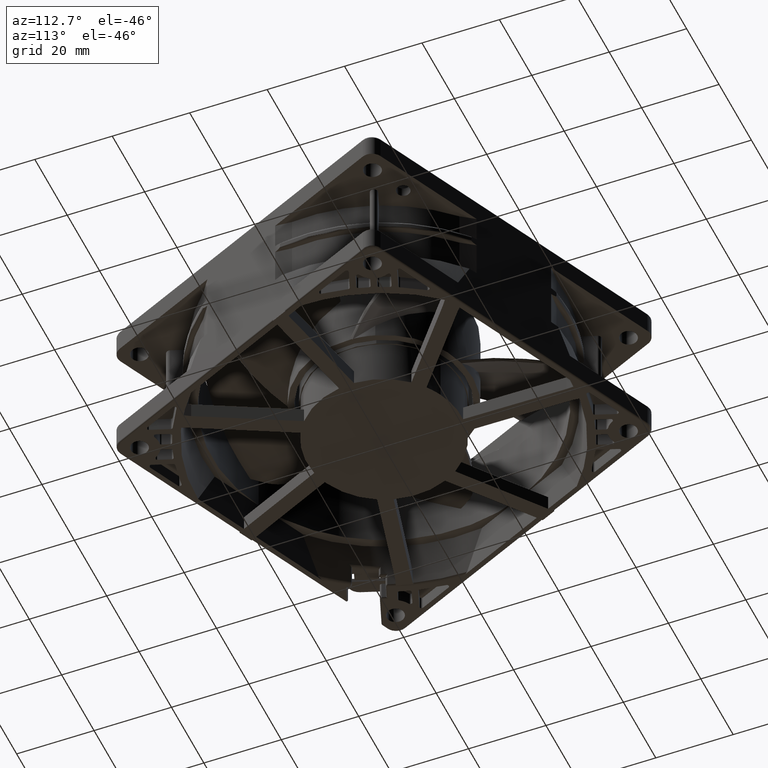
[diagram: clean part render]
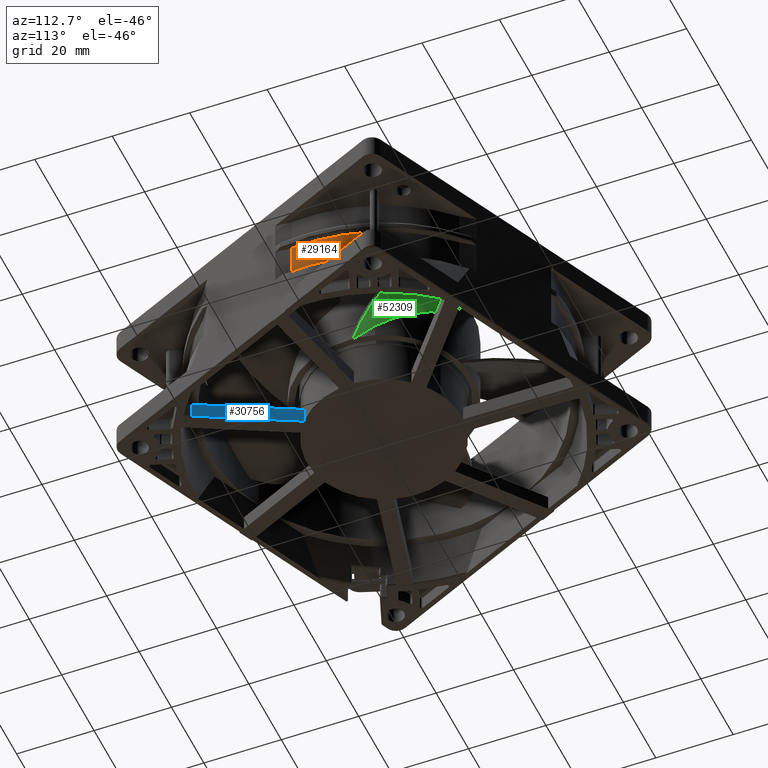
[diagram: same view with three faces highlighted in distinct colors, each labeled with its STEP entity id]
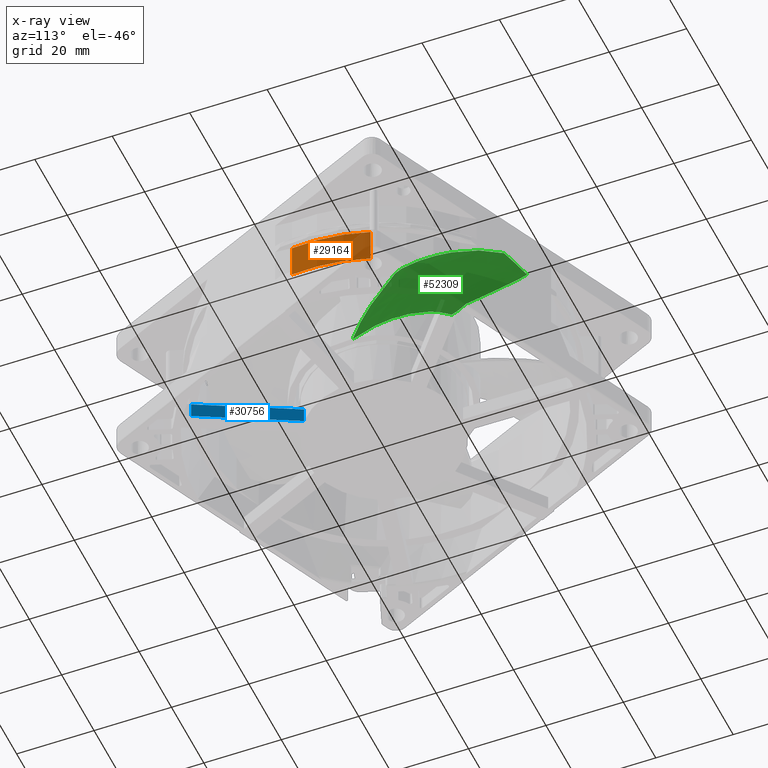
[diagram: x-ray of the same camera — body ghosted, the three highlighted faces saturated]
A machine part, auxiliary view with three faces highlighted in distinct colors.
The next image is the same camera in x-ray (body ghosted, the three faces saturated) — at least one of them is partly hidden behind the body in this view.
Their STEP definitions:

[orange] entity #29164 — the highlighted cylindrical surface (partial cylindrical patch) has radius 46.6 mm, axis along (0, 0, -1).
#1430 = ORIENTED_EDGE ( 'NONE', *, *, #41504, .T. ) ;
#2672 = EDGE_CURVE ( 'NONE', #14549, #53604, #26944, .T. ) ;
#8052 = CARTESIAN_POINT ( 'NONE',  ( 15.64634372218044300, -43.89478247044090200, 12.70000008314750100 ) ) ;
#8282 = CARTESIAN_POINT ( 'NONE',  ( 32.23648136532625600, -33.65069492860261100, 12.69999999999974000 ) ) ;
#9310 = LINE ( 'NONE', #40837, #40831 ) ;
#12193 = LINE ( 'NONE', #50183, #57968 ) ;
#12801 = FACE_OUTER_BOUND ( 'NONE', #13936, .T. ) ;
#13936 = EDGE_LOOP ( 'NONE', ( #57078, #45952, #26366, #1430 ) ) ;
#14549 = VERTEX_POINT ( 'NONE', #34856 ) ;
#19152 = EDGE_CURVE ( 'NONE', #26425, #40878, #28622, .T. ) ;
#25761 = DIRECTION ( 'NONE',  ( -0.0000000000000000000, -0.0000000000000000000, -1.000000000000000000 ) ) ;
#26366 = ORIENTED_EDGE ( 'NONE', *, *, #19152, .T. ) ;
#26425 = VERTEX_POINT ( 'NONE', #63732 ) ;
#26944 = CIRCLE ( 'NONE', #52761, 46.59999999999939700 ) ;
#28320 = CARTESIAN_POINT ( 'NONE',  ( 0.0000000000000000000, 0.0000000000000000000, 1.070000000000000100 ) ) ;
#28622 = B_SPLINE_CURVE_WITH_KNOTS ( 'NONE', 3,
 ( #8282, #58547, #38222, #53914, #47983, #8052 ),
 .UNSPECIFIED., .F., .F.,
 ( 4, 2, 4 ),
 ( 0.0000000000000000000, 0.5000000000000000000, 1.000000000000000000 ),
 .UNSPECIFIED. ) ;
#29164 = ADVANCED_FACE ( 'NONE', ( #12801 ), #34079, .T. ) ;
#34079 = CYLINDRICAL_SURFACE ( 'NONE', #45319, 46.60000000000000100 ) ;
#34222 = CARTESIAN_POINT ( 'NONE',  ( 15.64634372218044300, -43.89478247044090200, 12.70000008314750100 ) ) ;
#34856 = CARTESIAN_POINT ( 'NONE',  ( 15.64634372218047500, -43.89478247044100100, 3.641714314291518000 ) ) ;
#38222 = CARTESIAN_POINT ( 'NONE',  ( 27.26878996986964400, -37.93008370675786300, 12.69999999989000200 ) ) ;
#40831 = VECTOR ( 'NONE', #25761, 1000.000000000000000 ) ;
#40837 = CARTESIAN_POINT ( 'NONE',  ( 15.64634372218060000, -43.89478247044103700, -5.670657902249000200 ) ) ;
#40878 = VERTEX_POINT ( 'NONE', #34222 ) ;
#41504 = EDGE_CURVE ( 'NONE', #40878, #14549, #9310, .T. ) ;
#42142 = DIRECTION ( 'NONE',  ( -0.0000000000000000000, -0.0000000000000000000, 1.000000000000000000 ) ) ;
#45319 = AXIS2_PLACEMENT_3D ( 'NONE', #28320, #48710, #63690 ) ;
#45952 = ORIENTED_EDGE ( 'NONE', *, *, #63118, .T. ) ;
#47983 = CARTESIAN_POINT ( 'NONE',  ( 18.73014958594103200, -42.79555646221688600, 12.69999999989000000 ) ) ;
#48710 = DIRECTION ( 'NONE',  ( 0.0000000000000000000, 0.0000000000000000000, -1.000000000000000000 ) ) ;
#50183 = CARTESIAN_POINT ( 'NONE',  ( 32.23648136569999400, -33.65069492806999600, -500000.0000000000000 ) ) ;
#52682 = CARTESIAN_POINT ( 'NONE',  ( 32.23648140821190800, -33.65069497768942600, 3.641714120214766900 ) ) ;
#52761 = AXIS2_PLACEMENT_3D ( 'NONE', #61993, #42142, #56727 ) ;
#53604 = VERTEX_POINT ( 'NONE', #52682 ) ;
#53914 = CARTESIAN_POINT ( 'NONE',  ( 21.69758898530364600, -41.37019203058346800, 12.69999999988999800 ) ) ;
#56727 = DIRECTION ( 'NONE',  ( -0.9659258262890757500, -0.2588190451024925400, 0.0000000000000000000 ) ) ;
#57078 = ORIENTED_EDGE ( 'NONE', *, *, #2672, .T. ) ;
#57968 = VECTOR ( 'NONE', #60084, 1000.000000000000000 ) ;
#58547 = CARTESIAN_POINT ( 'NONE',  ( 29.87236871965622200, -35.91545271188190500, 12.69999999988999800 ) ) ;
#60084 = DIRECTION ( 'NONE',  ( 0.0000000000000000000, -0.0000000000000000000, 1.000000000000000000 ) ) ;
#61993 = CARTESIAN_POINT ( 'NONE',  ( 0.0000000000000000000, 0.0000000000000000000, 3.641714314292035800 ) ) ;
#63118 = EDGE_CURVE ( 'NONE', #53604, #26425, #12193, .T. ) ;
#63690 = DIRECTION ( 'NONE',  ( -1.000000000000000000, 0.0000000000000000000, 0.0000000000000000000 ) ) ;
#63732 = CARTESIAN_POINT ( 'NONE',  ( 32.23648136532625600, -33.65069492860261100, 12.69999999999974000 ) ) ;

[blue] entity #30756 — the highlighted planar face has unit normal (0.8969, 0.4423, 0).
#874 = VERTEX_POINT ( 'NONE', #26847 ) ;
#1559 = DIRECTION ( 'NONE',  ( -0.6259549959717272100, -0.7798591815308934000, 0.0000000000000000000 ) ) ;
#1725 = DIRECTION ( 'NONE',  ( 0.7798591815308934000, -0.6259549959717272100, 0.0000000000000000000 ) ) ;
#4504 = VECTOR ( 'NONE', #54128, 999.9999999999998900 ) ;
#5245 = AXIS2_PLACEMENT_3D ( 'NONE', #32257, #1725, #22110 ) ;
#7033 = ORIENTED_EDGE ( 'NONE', *, *, #42115, .F. ) ;
#12044 = PLANE ( 'NONE',  #5245 ) ;
#12430 = ORIENTED_EDGE ( 'NONE', *, *, #38107, .T. ) ;
#12639 = CARTESIAN_POINT ( 'NONE',  ( -8.354161976049285300, -18.17162562012359900, -6.299999999999999800 ) ) ;
#16151 = EDGE_CURVE ( 'NONE', #62748, #59936, #55950, .T. ) ;
#17829 = LINE ( 'NONE', #24433, #4504 ) ;
#22110 = DIRECTION ( 'NONE',  ( 0.6259549959717272100, 0.7798591815308934000, 0.0000000000000000000 ) ) ;
#24433 = CARTESIAN_POINT ( 'NONE',  ( -8.354161976049285300, -18.17162562012359900, -10.30000000000000100 ) ) ;
#24821 = LINE ( 'NONE', #36976, #30354 ) ;
#25129 = CARTESIAN_POINT ( 'NONE',  ( -25.22069874346373600, -39.18515477692366000, -10.30000000000000100 ) ) ;
#25539 = EDGE_LOOP ( 'NONE', ( #7033, #31253, #12430, #38614 ) ) ;
#26847 = CARTESIAN_POINT ( 'NONE',  ( -8.354161976049285300, -18.17162562012359900, -10.30000000000000100 ) ) ;
#30099 = FACE_OUTER_BOUND ( 'NONE', #25539, .T. ) ;
#30264 = DIRECTION ( 'NONE',  ( 0.0000000000000000000, 0.0000000000000000000, -1.000000000000000000 ) ) ;
#30354 = VECTOR ( 'NONE', #1559, 999.9999999999998900 ) ;
#30756 = ADVANCED_FACE ( 'NONE', ( #30099 ), #12044, .T. ) ;
#31253 = ORIENTED_EDGE ( 'NONE', *, *, #50509, .F. ) ;
#32213 = VERTEX_POINT ( 'NONE', #12639 ) ;
#32257 = CARTESIAN_POINT ( 'NONE',  ( -8.354161976049285300, -18.17162562012359900, -6.299999999999999800 ) ) ;
#33907 = LINE ( 'NONE', #60542, #51358 ) ;
#36084 = CARTESIAN_POINT ( 'NONE',  ( -25.22069874346373600, -39.18515477692366000, -6.299999999999999800 ) ) ;
#36976 = CARTESIAN_POINT ( 'NONE',  ( -8.354161976049285300, -18.17162562012359900, -6.299999999999999800 ) ) ;
#38107 = EDGE_CURVE ( 'NONE', #32213, #62748, #24821, .T. ) ;
#38614 = ORIENTED_EDGE ( 'NONE', *, *, #16151, .T. ) ;
#39308 = VECTOR ( 'NONE', #39339, 1000.000000000000000 ) ;
#39339 = DIRECTION ( 'NONE',  ( 0.0000000000000000000, 0.0000000000000000000, -1.000000000000000000 ) ) ;
#42115 = EDGE_CURVE ( 'NONE', #874, #59936, #17829, .T. ) ;
#50509 = EDGE_CURVE ( 'NONE', #32213, #874, #33907, .T. ) ;
#51358 = VECTOR ( 'NONE', #30264, 1000.000000000000000 ) ;
#54128 = DIRECTION ( 'NONE',  ( -0.6259549959717272100, -0.7798591815308934000, 0.0000000000000000000 ) ) ;
#55950 = LINE ( 'NONE', #65159, #39308 ) ;
#59936 = VERTEX_POINT ( 'NONE', #25129 ) ;
#60542 = CARTESIAN_POINT ( 'NONE',  ( -8.354161976049285300, -18.17162562012359900, -6.299999999999999800 ) ) ;
#62748 = VERTEX_POINT ( 'NONE', #36084 ) ;
#65159 = CARTESIAN_POINT ( 'NONE',  ( -25.22069874346373600, -39.18515477692366000, -6.299999999999999800 ) ) ;

[green] entity #52309 — the highlighted face is a freeform B-spline surface patch.
#187 = CARTESIAN_POINT ( 'NONE',  ( 20.42843439186000200, 25.01679607527999800, -8.081481824597002400 ) ) ;
#350 = CARTESIAN_POINT ( 'NONE',  ( 17.34239103723325600, 21.15226012286214900, -9.213824197526545100 ) ) ;
#405 = CARTESIAN_POINT ( 'NONE',  ( 21.89574667316999900, 26.71227581435000100, -7.497815654102000200 ) ) ;
#535 = VERTEX_POINT ( 'NONE', #16378 ) ;
#582 = CARTESIAN_POINT ( 'NONE',  ( 41.66220414257730200, 12.49218647075700500, -18.50148812625553100 ) ) ;
#620 = CARTESIAN_POINT ( 'NONE',  ( 22.59295191980000100, 27.59787275955000000, -7.151401448360999800 ) ) ;
#781 = CARTESIAN_POINT ( 'NONE',  ( 16.98129776601901100, 20.74709162122533700, -9.312648947060100800 ) ) ;
#809 = CARTESIAN_POINT ( 'NONE',  ( 41.69909701302543000, 12.35240815660979900, -18.59536920288736200 ) ) ;
#843 = CARTESIAN_POINT ( 'NONE',  ( 20.01957143362000100, 20.75507884106999900, -9.740905568322002500 ) ) ;
#942 = B_SPLINE_CURVE_WITH_KNOTS ( 'NONE', 3,
 ( #32805, #62185, #2286, #7555, #37036, #12582, #42365, #21777, #1853, #7098, #21564, #26617, #12167, #16510, #6670, #37267, #31741, #12384 ),
 .UNSPECIFIED., .F., .F.,
 ( 4, 2, 2, 2, 2, 2, 2, 2, 4 ),
 ( 0.4095037672356078900, 0.4833157963311569000, 0.5571278254267059100, 0.6309398545222548700, 0.7047518836178039400, 0.7785639127133530100, 0.8523759418089019700, 0.9261879709044509300, 1.000000000000000000 ),
 .UNSPECIFIED. ) ;
#972 = CARTESIAN_POINT ( 'NONE',  ( 21.66747555464491600, 7.726382878506773200, -15.91873676689709800 ) ) ;
#1065 = CARTESIAN_POINT ( 'NONE',  ( 21.28216599613000100, 27.20459761107000000, -7.230323084925999800 ) ) ;
#1160 = CARTESIAN_POINT ( 'NONE',  ( 21.59866924878521400, 35.31153549965957700, -3.622167763132573700 ) ) ;
#1193 = CARTESIAN_POINT ( 'NONE',  ( 18.73593199242071000, 13.34211330833955800, -12.55694380136481700 ) ) ;
#1278 = CARTESIAN_POINT ( 'NONE',  ( 19.25156607544000000, 25.93331259384000000, -7.602378264279000300 ) ) ;
#1345 = CARTESIAN_POINT ( 'NONE',  ( 32.28038555138999800, 0.8889354543620000500, -21.38912048810000100 ) ) ;
#1483 = CARTESIAN_POINT ( 'NONE',  ( 15.64403858110000000, 18.17618582896999900, -10.00673700141999900 ) ) ;
#1567 = CARTESIAN_POINT ( 'NONE',  ( 40.54862015430000400, 8.916408084402000600, -18.92154568490000000 ) ) ;
#1700 = CARTESIAN_POINT ( 'NONE',  ( 13.93204927050000000, 41.35113646405000100, -0.6193709834306000400 ) ) ;
#1795 = CARTESIAN_POINT ( 'NONE',  ( 29.61942552234707900, 31.65401977409666000, -5.715571454186420700 ) ) ;
#1853 = CARTESIAN_POINT ( 'NONE',  ( 36.75497183376012300, 23.28422907879944900, -11.11708393098299100 ) ) ;
#1921 = CARTESIAN_POINT ( 'NONE',  ( 18.42015873513999900, 32.18062878272999700, -4.909198711132000300 ) ) ;
#1989 = CARTESIAN_POINT ( 'NONE',  ( 30.43040455506000100, 31.30749791018000400, -5.947163587648000200 ) ) ;
#2001 = CARTESIAN_POINT ( 'NONE',  ( 25.28773059936000000, -2.580091193453999800, -22.40672615850000000 ) ) ;
#2132 = CARTESIAN_POINT ( 'NONE',  ( 19.01628485635999900, 24.37686835915999900, -8.183860296704999400 ) ) ;
#2206 = CARTESIAN_POINT ( 'NONE',  ( 28.06259279609000500, 27.72256083961000100, -7.892865600657999400 ) ) ;
#2216 = CARTESIAN_POINT ( 'NONE',  ( 23.93752810508999900, -1.644666282849000000, -21.63294566324000100 ) ) ;
#2286 = CARTESIAN_POINT ( 'NONE',  ( 31.43218667661673000, 30.08622202515056900, -6.738515842360913900 ) ) ;
#2350 = CARTESIAN_POINT ( 'NONE',  ( 11.42884316792000000, 42.11464696024000200, -0.2020071513416000200 ) ) ;
#2428 = CARTESIAN_POINT ( 'NONE',  ( 27.75814300715000000, 20.59041569669999900, -10.91987322431000100 ) ) ;
#2653 = CARTESIAN_POINT ( 'NONE',  ( 21.76817082571999900, 13.06810207739000000, -13.31271718492000000 ) ) ;
#2753 = CARTESIAN_POINT ( 'NONE',  ( 39.75704753428278300, 7.091936494156979800, -19.57404774110213500 ) ) ;
#2876 = CARTESIAN_POINT ( 'NONE',  ( 24.95791494462000100, 14.48230059708000000, -13.22889171792000200 ) ) ;
#2968 = CARTESIAN_POINT ( 'NONE',  ( 39.60153503086737500, 6.862073750405364200, -19.62667765944515400 ) ) ;
#3086 = CARTESIAN_POINT ( 'NONE',  ( 26.65116426507000100, 31.86600898512999800, -5.728213693987999700 ) ) ;
#3185 = CARTESIAN_POINT ( 'NONE',  ( 37.23720087978915000, 4.457959844637925600, -20.33028172659649300 ) ) ;
#3235 = CARTESIAN_POINT ( 'NONE',  ( 28.32868761660000300, 5.498317838332000400, -18.19061095684000400 ) ) ;
#3294 = CARTESIAN_POINT ( 'NONE',  ( 23.16331240906000100, 17.17554654790000200, -11.68707801271000000 ) ) ;
#3389 = CARTESIAN_POINT ( 'NONE',  ( 38.13950115906266100, 5.177099601020140400, -20.07965919501549500 ) ) ;
#3448 = CARTESIAN_POINT ( 'NONE',  ( 32.86117846897000300, 10.70450070251000000, -16.30057216375000100 ) ) ;
#3508 = CARTESIAN_POINT ( 'NONE',  ( 25.34880099975000400, 23.46208804860999900, -9.257317914165000200 ) ) ;
#3658 = CARTESIAN_POINT ( 'NONE',  ( 36.02291443829999900, 20.73247036056000100, -12.21326677447999900 ) ) ;
#3720 = CARTESIAN_POINT ( 'NONE',  ( 25.14607023350000500, 34.31406097298999900, -4.036929562070000100 ) ) ;
#3871 = CARTESIAN_POINT ( 'NONE',  ( 34.89393004526999700, 7.463511143574001100, -18.26097350151000500 ) ) ;
#3937 = CARTESIAN_POINT ( 'NONE',  ( 24.01001633517000000, 21.60060214898999900, -9.889039302265999300 ) ) ;
#4088 = CARTESIAN_POINT ( 'NONE',  ( 24.62024733399000100, 6.282396175513000000, -17.22799050537999900 ) ) ;
#4156 = CARTESIAN_POINT ( 'NONE',  ( 23.19505788212000000, 20.44369952966999900, -10.28553399302000000 ) ) ;
#4325 = CARTESIAN_POINT ( 'NONE',  ( 22.32496180013766500, -5.531429092998886100, -24.04957040339097300 ) ) ;
#4369 = CARTESIAN_POINT ( 'NONE',  ( 23.87213739398999800, 31.39631555504000100, -5.718543760912999700 ) ) ;
#4496 = CARTESIAN_POINT ( 'NONE',  ( 14.63547217548805400, 17.74268145526029600, -9.624646370059306100 ) ) ;
#4581 = CARTESIAN_POINT ( 'NONE',  ( 22.21470594423000100, 21.50375358926000400, -9.696922831526000800 ) ) ;
#4797 = CARTESIAN_POINT ( 'NONE',  ( 23.35685314845000000, 31.78584172119000000, -5.493418245072000200 ) ) ;
#4868 = B_SPLINE_CURVE_WITH_KNOTS ( 'NONE', 3,
 ( #11887, #52274, #62159, #31898, #1160, #62388, #21283, #41863, #36335, #6190, #41444, #41656, #26559, #51627, #46753, #36564, #57326, #16035, #56679, #16673, #1795, #11667 ),
 .UNSPECIFIED., .F., .F.,
 ( 4, 2, 2, 2, 2, 2, 2, 2, 2, 2, 4 ),
 ( 0.0000000000000000000, 0.001431646214298272200, 0.002147469321447408100, 0.002863292428596544500, 0.004294938642894816300, 0.005726584857193088900, 0.006442407964342216100, 0.007158231071491344200, 0.008589877285789589100, 0.01002152350008783500, 0.01145316971438607900 ),
 .UNSPECIFIED. ) ;
#5020 = CARTESIAN_POINT ( 'NONE',  ( 23.21023094354000100, 27.08112952384000100, -7.449479301540000300 ) ) ;
#5090 = CARTESIAN_POINT ( 'NONE',  ( 19.89855776928670700, 36.08679711582067300, -3.231849601800214100 ) ) ;
#5236 = CARTESIAN_POINT ( 'NONE',  ( 22.66811418465000500, 29.34432464801999900, -6.435297796632999800 ) ) ;
#5303 = CARTESIAN_POINT ( 'NONE',  ( 18.41858465821972500, 27.43997729039478300, -6.887351825775060600 ) ) ;
#5397 = CARTESIAN_POINT ( 'NONE',  ( 16.61935860196500400, 20.34097397663362400, -9.388432426930126700 ) ) ;
#5458 = CARTESIAN_POINT ( 'NONE',  ( 21.87126948435000200, 32.82648770003000000, -4.917839069352001300 ) ) ;
#5673 = CARTESIAN_POINT ( 'NONE',  ( 22.00045466247999900, 31.33681021943000300, -5.568416778832000700 ) ) ;
#5749 = B_SPLINE_CURVE_WITH_KNOTS ( 'NONE', 3,
 ( #60726, #30432, #20487, #5397, #781, #350 ),
 .UNSPECIFIED., .F., .F.,
 ( 4, 2, 4 ),
 ( 0.0000000000000000000, 0.001642034606809255700, 0.003284069213618511500 ),
 .UNSPECIFIED. ) ;
#5830 = CARTESIAN_POINT ( 'NONE',  ( 33.31943612696999700, 18.91469534307000100, -12.58915667958000000 ) ) ;
#5863 = CARTESIAN_POINT ( 'NONE',  ( 23.00000000000084900, -0.8808168239980117600, -21.02616282374528800 ) ) ;
#5890 = CARTESIAN_POINT ( 'NONE',  ( 22.00855906170000200, 35.23345181332000200, -3.764811126123000000 ) ) ;
#6107 = CARTESIAN_POINT ( 'NONE',  ( 18.13061587169000100, 15.69910265455999900, -11.44578760071000000 ) ) ;
#6190 = CARTESIAN_POINT ( 'NONE',  ( 24.14750345710709200, 34.14925093685360500, -4.210880313395881200 ) ) ;
#6227 = CARTESIAN_POINT ( 'NONE',  ( 22.98889331253967000, 0.8250414124448018900, -19.98776011671080300 ) ) ;
#6280 = CARTESIAN_POINT ( 'NONE',  ( 22.50881765617296500, -4.747412547085568600, -23.51357186479505800 ) ) ;
#6295 = CARTESIAN_POINT ( 'NONE',  ( 15.16070741319613900, 18.70427830160367600, -9.394748405689135500 ) ) ;
#6311 = CARTESIAN_POINT ( 'NONE',  ( 17.63056152197999900, 18.27561218709999800, -10.36834510532000000 ) ) ;
#6390 = CARTESIAN_POINT ( 'NONE',  ( 23.52370080305000100, -4.598385505799000400, -23.54528892371000000 ) ) ;
#6529 = CARTESIAN_POINT ( 'NONE',  ( 17.16989306394999900, 18.70920349780000100, -10.12104037870999900 ) ) ;
#6610 = CARTESIAN_POINT ( 'NONE',  ( 34.43004369290000000, 2.634435818944000000, -20.80106485138000100 ) ) ;
#6670 = CARTESIAN_POINT ( 'NONE',  ( 40.51506977735515100, 15.86939000220103100, -16.08533153369216600 ) ) ;
#6705 = CARTESIAN_POINT ( 'NONE',  ( 23.00000000000000700, 2.192027755056752400E-011, -20.48963907919110400 ) ) ;
#6737 = CARTESIAN_POINT ( 'NONE',  ( 16.86151396341999800, 37.96799662789000300, -2.293861269500999900 ) ) ;
#6949 = CARTESIAN_POINT ( 'NONE',  ( 16.24167244513000000, 38.23578219483000100, -2.176909408346000300 ) ) ;
#7027 = CARTESIAN_POINT ( 'NONE',  ( 22.98221384005999800, 6.914779455574001000, -16.59759910528000000 ) ) ;
#7098 = CARTESIAN_POINT ( 'NONE',  ( 37.72668357493280000, 21.67418473548649200, -12.16865131568769500 ) ) ;
#7172 = CARTESIAN_POINT ( 'NONE',  ( 16.00492146488000200, 19.71342006056000100, -9.406425377041999900 ) ) ;
#7249 = CARTESIAN_POINT ( 'NONE',  ( 33.00009367861999700, 25.27184540238999900, -9.672862632100999400 ) ) ;
#7263 = CARTESIAN_POINT ( 'NONE',  ( 22.16644271847999900, -5.278106229079001300, -23.84658237391000300 ) ) ;
#7405 = CARTESIAN_POINT ( 'NONE',  ( 17.25267469774999900, 31.21115966096000000, -4.959001477249000100 ) ) ;
#7481 = CARTESIAN_POINT ( 'NONE',  ( 29.39719080948999900, 29.38900888098000100, -7.280441047948000000 ) ) ;
#7555 = CARTESIAN_POINT ( 'NONE',  ( 32.74558819158684700, 28.65147225653245000, -7.665374002453972900 ) ) ;
#7617 = CARTESIAN_POINT ( 'NONE',  ( 17.25998297881000100, 27.29998403368999900, -6.395958630804999600 ) ) ;
#7684 = CARTESIAN_POINT ( 'NONE',  ( 23.77467471597000100, 16.31683122644000200, -12.18672644159000000 ) ) ;
#7825 = CARTESIAN_POINT ( 'NONE',  ( 16.76565383611999800, 23.46063843989999900, -7.813208552741000900 ) ) ;
#7904 = CARTESIAN_POINT ( 'NONE',  ( 28.82984792702000100, 31.32403960417000400, -5.962973860357999800 ) ) ;
#8040 = CARTESIAN_POINT ( 'NONE',  ( 12.39934272380000000, 41.83554598213999800, -0.4963557387436999800 ) ) ;
#8120 = CARTESIAN_POINT ( 'NONE',  ( 24.35561520708000000, 36.20231486171000100, -2.712363305572000000 ) ) ;
#8225 = CARTESIAN_POINT ( 'NONE',  ( 34.63643539372611700, 2.274317283824403000, -21.04626616569786900 ) ) ;
#8274 = CARTESIAN_POINT ( 'NONE',  ( 17.37000521083999900, 25.57130988962000000, -7.217112894636000100 ) ) ;
#8286 = CARTESIAN_POINT ( 'NONE',  ( 29.52671075256000300, 9.249769051870000400, -16.48570623214000000 ) ) ;
#8352 = CARTESIAN_POINT ( 'NONE',  ( 25.59835555832000200, 24.83595754155999900, -8.678256026393999200 ) ) ;
#8499 = CARTESIAN_POINT ( 'NONE',  ( 23.74097409637000000, 3.507732562898000500, -18.55307151571999900 ) ) ;
#8569 = CARTESIAN_POINT ( 'NONE',  ( 19.33330304940999900, 12.06425054428999900, -13.25469090567000000 ) ) ;
#8716 = EDGE_LOOP ( 'NONE', ( #30518, #62930, #51469, #24094, #17020, #44327, #50911, #29117, #49729, #54147 ) ) ;
#8719 = CARTESIAN_POINT ( 'NONE',  ( 35.98041913729999700, 24.72794958986000000, -10.21814810627000000 ) ) ;
#8785 = CARTESIAN_POINT ( 'NONE',  ( 23.82381450855000400, 19.70366513149999900, -10.66921717504000000 ) ) ;
#8878 = CARTESIAN_POINT ( 'NONE',  ( 26.32462852511897500, -3.481654381470654900, -23.14849837417105900 ) ) ;
#8949 = CARTESIAN_POINT ( 'NONE',  ( 26.97650843840000000, 6.381657649354000500, -17.53599066650999900 ) ) ;
#9004 = CARTESIAN_POINT ( 'NONE',  ( 25.87823643262000000, 26.55706704010000500, -7.997269414414001100 ) ) ;
#9162 = CARTESIAN_POINT ( 'NONE',  ( 28.85729315289000100, 11.16114219009000100, -15.44596159658999900 ) ) ;
#9221 = CARTESIAN_POINT ( 'NONE',  ( 18.43980104065000000, 13.38933965263000100, -12.47392584500999900 ) ) ;
#9434 = CARTESIAN_POINT ( 'NONE',  ( 19.75988870483000100, 15.94770024248000000, -11.66219324148000100 ) ) ;
#9521 = CARTESIAN_POINT ( 'NONE',  ( 31.98020360387095100, 0.1960514417083598100, -21.74548671910017100 ) ) ;
#9644 = CARTESIAN_POINT ( 'NONE',  ( 25.26462369137999900, 30.28603357868000500, -6.358538456978999800 ) ) ;
#9871 = CARTESIAN_POINT ( 'NONE',  ( 23.32790408314000200, 28.82338320567999900, -6.733666433075000200 ) ) ;
#10084 = CARTESIAN_POINT ( 'NONE',  ( 24.44127905715999900, 25.97509453289000100, -8.039966002356999700 ) ) ;
#10308 = CARTESIAN_POINT ( 'NONE',  ( 17.90016579253000000, 39.79415629087999700, -0.9892944786495999600 ) ) ;
#10380 = CARTESIAN_POINT ( 'NONE',  ( 17.45060484444742600, 21.78450491610008700, -8.990811089505244900 ) ) ;
#10433 = CARTESIAN_POINT ( 'NONE',  ( 16.32365411115159000, 16.20455979600863100, -10.89455930623888900 ) ) ;
#10526 = CARTESIAN_POINT ( 'NONE',  ( 21.30552119244000400, 28.60356002632000000, -6.628575628921000300 ) ) ;
#10654 = CARTESIAN_POINT ( 'NONE',  ( 20.10419539425846100, 11.18030509860327000, -13.84760938282214400 ) ) ;
#10742 = CARTESIAN_POINT ( 'NONE',  ( 19.52214758179000100, 21.22318893309000000, -9.493053157192999700 ) ) ;
#10807 = CARTESIAN_POINT ( 'NONE',  ( 19.79783595432423100, 35.49832467672173700, -3.560655683312935700 ) ) ;
#10952 = CARTESIAN_POINT ( 'NONE',  ( 21.27790566327000100, 31.83082657010000100, -5.285451277826999700 ) ) ;
#10997 = CARTESIAN_POINT ( 'NONE',  ( 22.01017662842999900, 5.989093988609000400, -16.89644039531000200 ) ) ;
#11067 = CARTESIAN_POINT ( 'NONE',  ( 22.94456760890572200, 1.648249467748998700, -19.49108793094601900 ) ) ;
#11158 = CARTESIAN_POINT ( 'NONE',  ( 17.29837113434000200, 16.61268337674000500, -10.93335791645000100 ) ) ;
#11166 = CARTESIAN_POINT ( 'NONE',  ( 22.32496180013766500, -5.531429092998886100, -24.04957040339097300 ) ) ;
#11289 = CARTESIAN_POINT ( 'NONE',  ( 19.45374868181435300, 12.27180650551900800, -13.18619092778173800 ) ) ;
#11380 = CARTESIAN_POINT ( 'NONE',  ( 15.03542460323000200, 17.12399416239000200, -10.26173316333000000 ) ) ;
#11457 = CARTESIAN_POINT ( 'NONE',  ( 30.91616161906999900, -0.8659716951888001300, -22.19343102554000100 ) ) ;
#11581 = CARTESIAN_POINT ( 'NONE',  ( 18.66099900740000100, 26.36208556844000100, -7.327725802238000500 ) ) ;
#11662 = CARTESIAN_POINT ( 'NONE',  ( 32.30566435496000100, 0.1099682955933000000, -21.84431416342000200 ) ) ;
#11667 = CARTESIAN_POINT ( 'NONE',  ( 30.03791760200170900, 31.46313446141037300, -5.841973921988343800 ) ) ;
#11797 = CARTESIAN_POINT ( 'NONE',  ( 17.90468447918999900, 32.46843607222000100, -4.762520577330000100 ) ) ;
#11880 = CARTESIAN_POINT ( 'NONE',  ( 22.02431509889000000, -5.889920131499000200, -24.26853077683999900 ) ) ;
#11887 = CARTESIAN_POINT ( 'NONE',  ( 19.89855776928670700, 36.08679711582067300, -3.231849601800214100 ) ) ;
#12018 = CARTESIAN_POINT ( 'NONE',  ( 18.59204287178999900, 30.43624967607000200, -5.660215503512000100 ) ) ;
#12097 = CARTESIAN_POINT ( 'NONE',  ( 29.26797781526000000, 26.47487725253000000, -8.651869307550999400 ) ) ;
#12109 = CARTESIAN_POINT ( 'NONE',  ( 37.62534198891000200, 7.305047316377000200, -18.84528004785000000 ) ) ;
#12167 = CARTESIAN_POINT ( 'NONE',  ( 39.43470266857053000, 18.38206313664800000, -14.36249709287612900 ) ) ;
#12231 = CARTESIAN_POINT ( 'NONE',  ( 16.87963533098999800, 21.96037711473000400, -8.732917195450999900 ) ) ;
#12302 = CARTESIAN_POINT ( 'NONE',  ( 21.73502625811000000, 10.17857382480000100, -14.71000587747000000 ) ) ;
#12315 = CARTESIAN_POINT ( 'NONE',  ( 27.70772864013000400, 0.8671315970528999900, -20.65522915327000300 ) ) ;
#12384 = CARTESIAN_POINT ( 'NONE',  ( 41.66220414257730200, 12.49218647075700500, -18.50148812625553100 ) ) ;
#12450 = CARTESIAN_POINT ( 'NONE',  ( 17.51162936424999800, 27.13494838699000100, -6.625718498253999800 ) ) ;
#12515 = CARTESIAN_POINT ( 'NONE',  ( 27.13960734336000200, 14.85706056275000200, -13.43880766214000200 ) ) ;
#12582 = CARTESIAN_POINT ( 'NONE',  ( 34.57869496099890200, 26.40984438634208700, -9.101107810582728800 ) ) ;
#12721 = CARTESIAN_POINT ( 'NONE',  ( 30.57129710884000000, 23.09343228482000000, -10.31449124320000100 ) ) ;
#12821 = CARTESIAN_POINT ( 'NONE',  ( 41.41712100523209000, 11.01212697738622000, -18.88433115836833000 ) ) ;
#12868 = CARTESIAN_POINT ( 'NONE',  ( 14.54618785309000000, 17.53837415306000100, -9.679279111939999700 ) ) ;
#12945 = CARTESIAN_POINT ( 'NONE',  ( 24.26344132039999800, 15.59423135798000000, -12.61013796238000000 ) ) ;
#13146 = CARTESIAN_POINT ( 'NONE',  ( 26.16484971786999800, 22.54505444448999900, -9.780579329361000200 ) ) ;
#13289 = CARTESIAN_POINT ( 'NONE',  ( 16.48524765584999900, 22.26015801928999900, -8.232060806705000300 ) ) ;
#13304 = CARTESIAN_POINT ( 'NONE',  ( 38.84220556687000000, 19.93037730156000000, -13.39128536164000000 ) ) ;
#13370 = CARTESIAN_POINT ( 'NONE',  ( 21.24659762466999900, 13.90298005948000100, -12.83406468131000000 ) ) ;
#13516 = CARTESIAN_POINT ( 'NONE',  ( 34.47508973304000100, 16.71914673581000000, -13.78285476629000100 ) ) ;
#13582 = CARTESIAN_POINT ( 'NONE',  ( 21.01897458873000000, 14.24264147301000000, -12.64074959317000200 ) ) ;
#13736 = CARTESIAN_POINT ( 'NONE',  ( 38.61197960513000300, 17.92766068515999900, -14.14434212119000000 ) ) ;
#13802 = CARTESIAN_POINT ( 'NONE',  ( 20.77167105638000100, 14.60074318930000100, -12.42780615983000200 ) ) ;
#13952 = CARTESIAN_POINT ( 'NONE',  ( 37.04150228679999700, 9.793457521071001500, -17.47810779472000000 ) ) ;
#14016 = CARTESIAN_POINT ( 'NONE',  ( 23.52901903739000400, 16.66945912335999900, -11.97589020773999900 ) ) ;
#14160 = CARTESIAN_POINT ( 'NONE',  ( 37.92259813193999900, 10.91767402494999900, -17.11593605100999900 ) ) ;
#14218 = CARTESIAN_POINT ( 'NONE',  ( 21.75624452323999900, 18.92349628334000000, -10.71374790984000000 ) ) ;
#14249 = EDGE_CURVE ( 'NONE', #30324, #41899, #24329, .T. ) ;
#14351 = CARTESIAN_POINT ( 'NONE',  ( 16.78901158330366900, 15.72662891237148000, -11.17937786395510000 ) ) ;
#14430 = CARTESIAN_POINT ( 'NONE',  ( 23.17850645651000000, 36.96396171042999900, -2.261171223197000000 ) ) ;
#14645 = CARTESIAN_POINT ( 'NONE',  ( 24.80950110563999900, 30.66246528026999800, -6.141822982554001200 ) ) ;
#14861 = CARTESIAN_POINT ( 'NONE',  ( 19.41339027432000100, 14.07844587804000000, -12.37945439710000000 ) ) ;
#15076 = B_SPLINE_CURVE_WITH_KNOTS ( 'NONE', 3,
 ( #4325, #59855, #30227, #34436 ),
 .UNSPECIFIED., .F., .F.,
 ( 4, 4 ),
 ( 0.0000000000000000000, 1.000000000000000000 ),
 .UNSPECIFIED. ) ;
#15081 = CARTESIAN_POINT ( 'NONE',  ( 24.79297774723000100, 29.17671363679999900, -6.768624987957999800 ) ) ;
#15294 = CARTESIAN_POINT ( 'NONE',  ( 16.21647622544000100, 16.01260907365999800, -10.94670171313000000 ) ) ;
#15363 = CARTESIAN_POINT ( 'NONE',  ( 18.09656166963538800, 25.55854124191711900, -7.598827905728993100 ) ) ;
#15419 = CARTESIAN_POINT ( 'NONE',  ( 19.10285179260296900, 12.81122205113112000, -12.87066884916593400 ) ) ;
#15516 = CARTESIAN_POINT ( 'NONE',  ( 18.18757135302999800, 38.44832058002000300, -1.918481227083999900 ) ) ;
#15586 = CARTESIAN_POINT ( 'NONE',  ( 19.37652184291377500, 33.03677508231776000, -4.626450275296360100 ) ) ;
#15637 = CARTESIAN_POINT ( 'NONE',  ( 18.48073266318580100, 13.69341649804907100, -12.35403564697657700 ) ) ;
#15726 = CARTESIAN_POINT ( 'NONE',  ( 20.50466528815000100, 20.27434176790000100, -9.988436305547999400 ) ) ;
#15855 = CARTESIAN_POINT ( 'NONE',  ( 22.77832748761342800, 3.290917506930472600, -18.51728670987811400 ) ) ;
#15947 = CARTESIAN_POINT ( 'NONE',  ( 18.52620926602000000, 15.23110297054000000, -11.71876988536000000 ) ) ;
#16035 = CARTESIAN_POINT ( 'NONE',  ( 27.94032600109516900, 32.41969980404682200, -5.231866579010103100 ) ) ;
#16068 = CARTESIAN_POINT ( 'NONE',  ( 21.04033324733782000, 9.299491990138099200, -14.99523851047085200 ) ) ;
#16158 = CARTESIAN_POINT ( 'NONE',  ( 20.06121067720999900, 19.09954560535999900, -10.41202860003000000 ) ) ;
#16291 = CARTESIAN_POINT ( 'NONE',  ( 41.66220414257730200, 12.49218647075700500, -18.50148812625553100 ) ) ;
#16364 = CARTESIAN_POINT ( 'NONE',  ( 16.32134585967000000, 39.27491888814999800, -1.608890179814000100 ) ) ;
#16378 = CARTESIAN_POINT ( 'NONE',  ( 19.89855776928670700, 36.08679711582067300, -3.231849601800214100 ) ) ;
#16444 = CARTESIAN_POINT ( 'NONE',  ( 36.57204263532000300, 6.321137986290000100, -19.17939074726000100 ) ) ;
#16510 = CARTESIAN_POINT ( 'NONE',  ( 40.17340286664588700, 16.70947460570595700, -15.50242389132547100 ) ) ;
#16581 = CARTESIAN_POINT ( 'NONE',  ( 16.36612484571000100, 19.41279836881000200, -9.708615537706002400 ) ) ;
#16667 = CARTESIAN_POINT ( 'NONE',  ( 28.75317930792000400, -2.291367492579000000, -22.72827538018999900 ) ) ;
#16673 = CARTESIAN_POINT ( 'NONE',  ( 29.19966227377856800, 31.84543447743497100, -5.594592476652581900 ) ) ;
#16795 = CARTESIAN_POINT ( 'NONE',  ( 17.37955852397000100, 35.40971863002000200, -3.457190163356000000 ) ) ;
#16822 = CARTESIAN_POINT ( 'NONE',  ( 14.63547217548805400, 17.74268145526029600, -9.624646370059306100 ) ) ;
#16878 = CARTESIAN_POINT ( 'NONE',  ( 35.47533484157000300, 3.557571378352999900, -20.50206344076000100 ) ) ;
#17017 = CARTESIAN_POINT ( 'NONE',  ( 15.29762838137999900, 18.47003148469000100, -9.700480123427000800 ) ) ;
#17020 = ORIENTED_EDGE ( 'NONE', *, *, #28513, .T. ) ;
#17093 = CARTESIAN_POINT ( 'NONE',  ( 26.81840842215000000, 21.77508861000000100, -10.23973798327000000 ) ) ;
#17104 = CARTESIAN_POINT ( 'NONE',  ( 28.78907354251000000, -1.580520159116999900, -22.29045428503999900 ) ) ;
#17240 = CARTESIAN_POINT ( 'NONE',  ( 18.25892929148999900, 33.65355439193000100, -4.267946139608000100 ) ) ;
#17317 = CARTESIAN_POINT ( 'NONE',  ( 25.86505899552999900, 9.970027139129999900, -15.55273186406999900 ) ) ;
#17459 = CARTESIAN_POINT ( 'NONE',  ( 16.67531213465000000, 33.11999661483000100, -3.968131628581999400 ) ) ;
#17542 = CARTESIAN_POINT ( 'NONE',  ( 22.75202816855999900, 11.31208010697000100, -14.36340474130999900 ) ) ;
#17674 = VERTEX_POINT ( 'NONE', #65320 ) ;
#17681 = CARTESIAN_POINT ( 'NONE',  ( 13.49616803692999900, 40.32066299088000200, -0.9864245572904001300 ) ) ;
#17755 = CARTESIAN_POINT ( 'NONE',  ( 31.44117473353000100, 19.70268095564999900, -11.92818316920000200 ) ) ;
#17859 = B_SPLINE_CURVE_WITH_KNOTS ( 'NONE', 3,
 ( #4496, #30395, #55191, #20014, #59814, #65313, #35496, #24859, #40376, #34823, #10433, #14351, #49683, #44839, #54978, #39922, #30625, #26173, #15637, #1193, #36164, #15419, #61555, #11289, #31276, #46146, #10654, #30856, #50795, #16068, #20676, #61130, #972, #36378, #41476, #55850, #15855, #51223, #11067, #6227, #20895, #60919 ),
 .UNSPECIFIED., .F., .F.,
 ( 4, 2, 2, 2, 2, 2, 2, 2, 2, 2, 2, 2, 2, 2, 2, 2, 2, 2, 2, 2, 4 ),
 ( 0.0000000000000000000, 0.0007094198100283838700, 0.001064129715042579000, 0.001418839620056774200, 0.002128259430085171400, 0.002837679240113568400, 0.004256518860170362800, 0.004965938670198759800, 0.005675358480227158500, 0.006384778290255556400, 0.007094198100283953400, 0.007803617910312351200, 0.008513037720340749900, 0.009931877340397542200, 0.01135071696045433400, 0.01276955658051112800, 0.01418839620056791700, 0.01702607544068149600, 0.01986375468079507400, 0.02128259430085186600, 0.02270143392090865800 ),
 .UNSPECIFIED. ) ;
#17889 = CARTESIAN_POINT ( 'NONE',  ( 14.37675561647000000, 17.68010748617999900, -9.451582804638000800 ) ) ;
#17961 = CARTESIAN_POINT ( 'NONE',  ( 27.15631314722000100, 23.13069711158000200, -9.683617591020999200 ) ) ;
#18167 = CARTESIAN_POINT ( 'NONE',  ( 25.67852090381000000, 35.27299724297000000, -3.303117406955000200 ) ) ;
#18280 = B_SPLINE_CURVE_WITH_KNOTS ( 'NONE', 3,
 ( #582, #51286, #30462, #51068, #809, #26011, #35102, #20298, #55702, #30244 ),
 .UNSPECIFIED., .F., .F.,
 ( 4, 1, 1, 2, 2, 4 ),
 ( 0.0000000000000000000, 0.2499999999999977800, 0.3750000000000016700, 0.4374999999999993300, 0.4999999999999970000, 1.000000000000000000 ),
 .UNSPECIFIED. ) ;
#18315 = CARTESIAN_POINT ( 'NONE',  ( 16.68884237070999900, 22.10374964178999900, -8.457930590739000100 ) ) ;
#18327 = CARTESIAN_POINT ( 'NONE',  ( 25.39106582372999900, 1.000223713212000000, -20.22661169974999900 ) ) ;
#18392 = CARTESIAN_POINT ( 'NONE',  ( 25.47395001218000100, 32.81293133682000000, -5.145950885607000200 ) ) ;
#18536 = CARTESIAN_POINT ( 'NONE',  ( 35.11488347974000100, 18.01268778667000000, -13.31304485840000000 ) ) ;
#18605 = CARTESIAN_POINT ( 'NONE',  ( 24.61871120164000000, 34.69039976063999800, -3.804000385810000200 ) ) ;
#18762 = CARTESIAN_POINT ( 'NONE',  ( 39.33339487955999700, 13.40674921152000100, -16.32769186224999900 ) ) ;
#18819 = CARTESIAN_POINT ( 'NONE',  ( 25.22723511902999900, 25.21000731581000000, -8.465038870846999700 ) ) ;
#18914 = CARTESIAN_POINT ( 'NONE',  ( 27.29712623975477800, -2.919827102473174600, -22.91730696357882400 ) ) ;
#18968 = CARTESIAN_POINT ( 'NONE',  ( 26.48200884253000400, 8.193783339248000200, -16.53899698261000100 ) ) ;
#19032 = CARTESIAN_POINT ( 'NONE',  ( 24.52041232895999900, 18.83234049422999900, -11.17299898763000100 ) ) ;
#19191 = CARTESIAN_POINT ( 'NONE',  ( 34.65366511343999900, 13.25727902231000000, -15.38000901297000000 ) ) ;
#19254 = CARTESIAN_POINT ( 'NONE',  ( 22.94596734472000000, 35.81597664080000200, -3.169899766301000000 ) ) ;
#19462 = CARTESIAN_POINT ( 'NONE',  ( 18.66928757119000100, 13.06744035748000100, -12.66372568323999900 ) ) ;
#19641 = CARTESIAN_POINT ( 'NONE',  ( 22.41225674214645400, -5.166308907094255600, -23.79999999970633300 ) ) ;
#19662 = B_SPLINE_CURVE_WITH_KNOTS ( 'NONE', 3,
 ( #23331, #12821, #33488, #37950, #2753, #2968, #28182, #63557, #3389, #3185, #38386, #8225, #28616, #9521, #33917, #64618, #44797, #18914, #8878, #58921, #44153, #39454 ),
 .UNSPECIFIED., .F., .F.,
 ( 4, 1, 2, 2, 2, 2, 2, 2, 2, 2, 1, 4 ),
 ( 0.0000000000000000000, 0.1249999999999997200, 0.1874999999999998100, 0.2187500000000000300, 0.2500000000000002800, 0.3750000000000005000, 0.5000000000000006700, 0.6250000000000007800, 0.7500000000000006700, 0.8125000000000005600, 0.8750000000000003300, 1.000000000000000000 ),
 .UNSPECIFIED. ) ;
#19668 = CARTESIAN_POINT ( 'NONE',  ( 21.25173546283999900, 17.76425618193000100, -11.14581084326000000 ) ) ;
#19885 = CARTESIAN_POINT ( 'NONE',  ( 23.65097317988999800, 26.69394256460000000, -7.641357095126999800 ) ) ;
#19960 = CARTESIAN_POINT ( 'NONE',  ( 19.69333434542988900, 34.88776859511493500, -3.838297680057527500 ) ) ;
#20014 = CARTESIAN_POINT ( 'NONE',  ( 15.10618962778154500, 17.34396079974588600, -10.17666341663641600 ) ) ;
#20104 = CARTESIAN_POINT ( 'NONE',  ( 23.88603833747000100, 24.94616670119999900, -8.423489814016999600 ) ) ;
#20162 = CARTESIAN_POINT ( 'NONE',  ( 34.29391255648000200, 27.01897542796000100, -8.728499710276999200 ) ) ;
#20298 = CARTESIAN_POINT ( 'NONE',  ( 41.71901689213205300, 12.26052610194013000, -18.65340741909060200 ) ) ;
#20327 = CARTESIAN_POINT ( 'NONE',  ( 18.86147896166999900, 39.34615391457000300, -1.148139839031999900 ) ) ;
#20487 = CARTESIAN_POINT ( 'NONE',  ( 15.89165473335664700, 19.52444619950864500, -9.435795513396756800 ) ) ;
#20544 = CARTESIAN_POINT ( 'NONE',  ( 17.43791675277000100, 14.67302753683000000, -11.72505430568000100 ) ) ;
#20618 = CARTESIAN_POINT ( 'NONE',  ( 19.05780247187729900, 31.17464059107791000, -5.388871158305222200 ) ) ;
#20676 = CARTESIAN_POINT ( 'NONE',  ( 21.20752316884112100, 8.911818224985401200, -15.22558144030056900 ) ) ;
#20735 = VERTEX_POINT ( 'NONE', #19641 ) ;
#20766 = CARTESIAN_POINT ( 'NONE',  ( 18.51600477733000000, 17.37735822232000200, -10.88654654233000100 ) ) ;
#20833 = CARTESIAN_POINT ( 'NONE',  ( 18.84518896472608100, 29.93243512461296500, -5.895175349057235600 ) ) ;
#20895 = CARTESIAN_POINT ( 'NONE',  ( 22.99999999999962000, 0.4117996962223079400, -20.23880336739875900 ) ) ;
#20984 = CARTESIAN_POINT ( 'NONE',  ( 19.35828018303000100, 16.43236531542000000, -11.39688403429000000 ) ) ;
#21190 = CARTESIAN_POINT ( 'NONE',  ( 20.67189968179999900, 22.99081029174000100, -8.908298369619000600 ) ) ;
#21283 = CARTESIAN_POINT ( 'NONE',  ( 22.23716960829479200, 35.02037528657822200, -3.763536574077899700 ) ) ;
#21410 = CARTESIAN_POINT ( 'NONE',  ( 17.25900588745999900, 38.87234835067999900, -1.754692935425000000 ) ) ;
#21564 = CARTESIAN_POINT ( 'NONE',  ( 38.18289138945326800, 20.85986710013170900, -12.70758036672379300 ) ) ;
#21627 = CARTESIAN_POINT ( 'NONE',  ( 17.63537913941000200, 21.35980197884000000, -9.178950086791999800 ) ) ;
#21711 = CARTESIAN_POINT ( 'NONE',  ( 41.08424279953000300, 10.99161877151000000, -18.58266647953000100 ) ) ;
#21777 = CARTESIAN_POINT ( 'NONE',  ( 36.23963410769629000, 24.07947780067306100, -10.60356026417770700 ) ) ;
#21852 = CARTESIAN_POINT ( 'NONE',  ( 16.42070076250999800, 17.48109411850000000, -10.42620331170999900 ) ) ;
#21939 = CARTESIAN_POINT ( 'NONE',  ( 41.63190890287000200, 13.02559109377000000, -18.24620628454999900 ) ) ;
#22080 = CARTESIAN_POINT ( 'NONE',  ( 18.63361524802000000, 20.49496496948000200, -9.674082918326000400 ) ) ;
#22161 = CARTESIAN_POINT ( 'NONE',  ( 28.92465501645000000, 14.41832963749000000, -13.91982683254999900 ) ) ;
#22172 = CARTESIAN_POINT ( 'NONE',  ( 40.15302544221999900, 10.74462562519999900, -17.83761747587999800 ) ) ;
#22331 = CARTESIAN_POINT ( 'NONE',  ( 14.98779402390317400, 18.38078153179242200, -9.473532823889655700 ) ) ;
#22376 = CARTESIAN_POINT ( 'NONE',  ( 30.83234987232999900, 29.35613531411000200, -7.190686273955000400 ) ) ;
#22517 = CARTESIAN_POINT ( 'NONE',  ( 16.37756820428000300, 35.88255500343999700, -2.869807145072000000 ) ) ;
#22584 = CARTESIAN_POINT ( 'NONE',  ( 17.34239103723325600, 21.15226012286214900, -9.213824197526545100 ) ) ;
#22586 = CARTESIAN_POINT ( 'NONE',  ( 26.66868387260000300, 11.02368792785000000, -15.15849524525000000 ) ) ;
#22786 = CARTESIAN_POINT ( 'NONE',  ( 29.51507084727000300, 20.06382956965000000, -11.41131203372000000 ) ) ;
#22934 = CARTESIAN_POINT ( 'NONE',  ( 14.95720336532000000, 18.74662977699000200, -9.201013377593000100 ) ) ;
#22946 = VERTEX_POINT ( 'NONE', #61476 ) ;
#23021 = CARTESIAN_POINT ( 'NONE',  ( 27.87092360982000400, 26.26215552609999900, -8.487225357544000200 ) ) ;
#23235 = CARTESIAN_POINT ( 'NONE',  ( 26.80409209560000100, 25.61873370209999800, -8.550220373564000600 ) ) ;
#23331 = CARTESIAN_POINT ( 'NONE',  ( 41.73602458989426400, 12.14431362395515800, -18.71878891661012600 ) ) ;
#23394 = CARTESIAN_POINT ( 'NONE',  ( 22.79059170497999900, 0.9523923290778999500, -19.87095101197000000 ) ) ;
#23456 = CARTESIAN_POINT ( 'NONE',  ( 20.61757591410000100, 12.24920899554999900, -13.45286876364000000 ) ) ;
#23609 = CARTESIAN_POINT ( 'NONE',  ( 35.43069197404000200, 11.01695264254000000, -16.60861662801000100 ) ) ;
#23667 = CARTESIAN_POINT ( 'NONE',  ( 19.10933117716000100, 12.41563050140000300, -13.04320740044000000 ) ) ;
#23815 = CARTESIAN_POINT ( 'NONE',  ( 32.10769120887999900, 12.78823193374000100, -15.16631183913000000 ) ) ;
#23872 = CARTESIAN_POINT ( 'NONE',  ( 25.38994553273000000, 19.96056624767999900, -10.82409391286000000 ) ) ;
#24022 = CARTESIAN_POINT ( 'NONE',  ( 31.21354457917999900, 14.84010567193000100, -14.07629438178999900 ) ) ;
#24084 = CARTESIAN_POINT ( 'NONE',  ( 26.43035291210999900, 26.00489870302000000, -8.314927748467999500 ) ) ;
#24094 = ORIENTED_EDGE ( 'NONE', *, *, #63270, .T. ) ;
#24237 = CARTESIAN_POINT ( 'NONE',  ( 37.38400611494999700, 20.36606505529000100, -12.65130796737999900 ) ) ;
#24293 = CARTESIAN_POINT ( 'NONE',  ( 23.50814907479999900, 25.30276724423000100, -8.231466772974000500 ) ) ;
#24329 = B_SPLINE_CURVE_WITH_KNOTS ( 'NONE', 3,
 ( #16822, #62326, #22331, #32709 ),
 .UNSPECIFIED., .F., .F.,
 ( 4, 4 ),
 ( 0.0000000000000000000, 0.05773497923775503000 ),
 .UNSPECIFIED. ) ;
#24499 = CARTESIAN_POINT ( 'NONE',  ( 20.03550102859000100, 15.59624523347000000, -11.86701398162000000 ) ) ;
#24733 = CARTESIAN_POINT ( 'NONE',  ( 21.52818988047999900, 17.42765173299000000, -11.33066616352999900 ) ) ;
#24859 = CARTESIAN_POINT ( 'NONE',  ( 15.68584914705793300, 16.82272407205535500, -10.51171694031771200 ) ) ;
#24954 = CARTESIAN_POINT ( 'NONE',  ( 22.63800452787000200, 23.03767693577999900, -9.119827785749000900 ) ) ;
#25025 = VERTEX_POINT ( 'NONE', #22584 ) ;
#25169 = CARTESIAN_POINT ( 'NONE',  ( 18.08209465263000100, 17.82851659138000100, -10.61435742972999900 ) ) ;
#25397 = CARTESIAN_POINT ( 'NONE',  ( 20.12890539711000000, 23.46698427940999900, -8.669060079817999300 ) ) ;
#25610 = CARTESIAN_POINT ( 'NONE',  ( 20.97432243220000100, 19.78877200762000000, -10.26115863280000100 ) ) ;
#25826 = CARTESIAN_POINT ( 'NONE',  ( 19.59516535199000100, 19.57936711146999900, -10.17429562275000000 ) ) ;
#26011 = CARTESIAN_POINT ( 'NONE',  ( 41.70286495972648300, 12.33550505613954800, -18.60614701621407700 ) ) ;
#26039 = CARTESIAN_POINT ( 'NONE',  ( 20.63864041284000100, 29.08811125072000100, -6.394540212939000800 ) ) ;
#26173 = CARTESIAN_POINT ( 'NONE',  ( 18.34979305326791600, 13.86839967418242200, -12.25481905221269600 ) ) ;
#26231 = CARTESIAN_POINT ( 'NONE',  ( 22.59329628136031000, -4.327560212656758900, -23.22669576891494400 ) ) ;
#26266 = CARTESIAN_POINT ( 'NONE',  ( 17.18183553597000200, 23.15607788602000000, -8.317033921710999400 ) ) ;
#26478 = CARTESIAN_POINT ( 'NONE',  ( 18.10365595615000000, 30.72751764276000200, -5.519868777336999900 ) ) ;
#26559 = CARTESIAN_POINT ( 'NONE',  ( 25.41743002146503000, 33.57015637007825100, -4.525571245611272000 ) ) ;
#26617 = CARTESIAN_POINT ( 'NONE',  ( 39.03689977154597600, 19.21408048901238900, -13.80497488713566800 ) ) ;
#26686 = CARTESIAN_POINT ( 'NONE',  ( 19.01194274012999900, 21.67944607276999800, -9.251576365928000800 ) ) ;
#26773 = CARTESIAN_POINT ( 'NONE',  ( 30.92395786318000000, 1.283776139915000100, -20.89925495917999900 ) ) ;
#26909 = CARTESIAN_POINT ( 'NONE',  ( 15.35092723820000200, 16.84233955143999900, -10.42581481131000000 ) ) ;
#26997 = CARTESIAN_POINT ( 'NONE',  ( 22.44114725468000100, -4.136799128887999700, -23.05560938421000100 ) ) ;
#27132 = CARTESIAN_POINT ( 'NONE',  ( 18.04337320898000000, 25.10305927676000000, -7.790893370004000400 ) ) ;
#27205 = CARTESIAN_POINT ( 'NONE',  ( 27.92151010253000400, 16.27944912027999900, -12.90390906921000000 ) ) ;
#27216 = CARTESIAN_POINT ( 'NONE',  ( 27.54251446852000000, -3.048651660181000100, -23.02408972453000000 ) ) ;
#27346 = CARTESIAN_POINT ( 'NONE',  ( 16.98001909109000000, 23.30201278100999900, -8.039868237337000100 ) ) ;
#27423 = CARTESIAN_POINT ( 'NONE',  ( 19.99957459863000200, 10.92328817778000000, -13.94958134051000100 ) ) ;
#27574 = CARTESIAN_POINT ( 'NONE',  ( 16.02121173167000000, 36.04883648396000200, -2.636535062720000600 ) ) ;
#27653 = CARTESIAN_POINT ( 'NONE',  ( 28.15570612204000200, 21.92752471635000000, -10.37327610610000100 ) ) ;
#27869 = CARTESIAN_POINT ( 'NONE',  ( 29.03314048792000100, 18.75346596289999800, -11.93068164000000000 ) ) ;
#27888 = VERTEX_POINT ( 'NONE', #11166 ) ;
#28009 = CARTESIAN_POINT ( 'NONE',  ( 17.14757266307999800, 29.98192677520999900, -5.322925357289999900 ) ) ;
#28090 = CARTESIAN_POINT ( 'NONE',  ( 22.89825509003999900, 17.52482320381999900, -11.48668874174999900 ) ) ;
#28182 = CARTESIAN_POINT ( 'NONE',  ( 39.26582141100576700, 6.419688690885419800, -19.73559639913285200 ) ) ;
#28215 = EDGE_CURVE ( 'NONE', #27888, #20735, #15076, .T. ) ;
#28226 = CARTESIAN_POINT ( 'NONE',  ( 16.76631990482000100, 34.41799144365000300, -3.535284872230000100 ) ) ;
#28241 = CARTESIAN_POINT ( 'NONE',  ( 37.49798117708000000, 22.35709881947000000, -11.76369450097000100 ) ) ;
#28303 = CARTESIAN_POINT ( 'NONE',  ( 24.99932752194000000, 23.83142753662000100, -9.043963561366000500 ) ) ;
#28451 = CARTESIAN_POINT ( 'NONE',  ( 33.47914969928000100, 8.582141612877000700, -17.45374117340999800 ) ) ;
#28513 = EDGE_CURVE ( 'NONE', #22946, #27888, #19662, .T. ) ;
#28522 = CARTESIAN_POINT ( 'NONE',  ( 25.83769414849999900, 22.92089418884999900, -9.553261138025000300 ) ) ;
#28616 = CARTESIAN_POINT ( 'NONE',  ( 32.88249475529048000, 0.8698420290814041800, -21.51241853764652100 ) ) ;
#28670 = CARTESIAN_POINT ( 'NONE',  ( 22.65699083974000100, 2.638432825677000000, -18.85906319156000100 ) ) ;
#28736 = CARTESIAN_POINT ( 'NONE',  ( 21.56102138517999800, 13.40833812135000300, -13.10467880785999900 ) ) ;
#28895 = CARTESIAN_POINT ( 'NONE',  ( 30.06694721207999900, 7.299352532728000200, -17.52914025376999900 ) ) ;
#28957 = CARTESIAN_POINT ( 'NONE',  ( 22.60750930372000100, 17.89814371933000100, -11.28086159811000000 ) ) ;
#29113 = CARTESIAN_POINT ( 'NONE',  ( 32.65779895162000200, 17.61026052380000100, -13.03786814161000200 ) ) ;
#29117 = ORIENTED_EDGE ( 'NONE', *, *, #62099, .F. ) ;
#29177 = CARTESIAN_POINT ( 'NONE',  ( 24.35180860238000000, 29.54307293207000000, -6.557618001936999600 ) ) ;
#29305 = CARTESIAN_POINT ( 'NONE',  ( 30.03791760200170900, 31.46313446141037300, -5.841973921988343800 ) ) ;
#29403 = CARTESIAN_POINT ( 'NONE',  ( 24.34382215923000100, 31.03098495832000100, -5.929519834061999900 ) ) ;
#29613 = CARTESIAN_POINT ( 'NONE',  ( 19.64849124373000000, 13.75090858467000000, -12.56607671965000300 ) ) ;
#29830 = CARTESIAN_POINT ( 'NONE',  ( 23.50142281068000500, 35.45864120398000100, -3.367092237805000100 ) ) ;
#29901 = CARTESIAN_POINT ( 'NONE',  ( 18.20412814427648800, 26.18700396095422900, -7.365323525349804600 ) ) ;
#30048 = CARTESIAN_POINT ( 'NONE',  ( 24.43469099517999900, 33.59646755934000600, -4.685469250537999600 ) ) ;
#30227 = CARTESIAN_POINT ( 'NONE',  ( 22.38335822931030700, -5.288085638143535000, -23.88315439124936300 ) ) ;
#30244 = CARTESIAN_POINT ( 'NONE',  ( 41.73602458989426400, 12.14431362395515800, -18.71878891661012600 ) ) ;
#30275 = CARTESIAN_POINT ( 'NONE',  ( 19.12229329247999800, 20.04095099622999900, -9.914940337920999300 ) ) ;
#30324 = VERTEX_POINT ( 'NONE', #56903 ) ;
#30395 = CARTESIAN_POINT ( 'NONE',  ( 14.75828119994777800, 17.64138546299717400, -9.802214836588175800 ) ) ;
#30432 = CARTESIAN_POINT ( 'NONE',  ( 15.52620605550505500, 19.11439066806002500, -9.415983369332938200 ) ) ;
#30462 = CARTESIAN_POINT ( 'NONE',  ( 41.68054684687638200, 12.43076161251842900, -18.54435534342873400 ) ) ;
#30496 = CARTESIAN_POINT ( 'NONE',  ( 21.95047636265000100, 28.11099593384999900, -6.902577753599000100 ) ) ;
#30518 = ORIENTED_EDGE ( 'NONE', *, *, #42800, .T. ) ;
#30625 = CARTESIAN_POINT ( 'NONE',  ( 18.08393356485285300, 14.21333041347491700, -12.05192805530515600 ) ) ;
#30718 = CARTESIAN_POINT ( 'NONE',  ( 21.55866882490000000, 24.04971086786000000, -8.584700453284002100 ) ) ;
#30856 = CARTESIAN_POINT ( 'NONE',  ( 20.50059093072569300, 10.43569192911638200, -14.29754446276629100 ) ) ;
#30943 = CARTESIAN_POINT ( 'NONE',  ( 17.71809336157000200, 16.16438455148999900, -11.19977800859999900 ) ) ;
#31158 = CARTESIAN_POINT ( 'NONE',  ( 20.33454233215000400, 33.80090495339000300, -4.372799885395999700 ) ) ;
#31276 = CARTESIAN_POINT ( 'NONE',  ( 19.56530931735902000, 12.09311002238518100, -13.29866707650550900 ) ) ;
#31373 = CARTESIAN_POINT ( 'NONE',  ( 18.45274749481999900, 24.80629429809000200, -7.925769883864999700 ) ) ;
#31589 = CARTESIAN_POINT ( 'NONE',  ( 19.57775566599000100, 23.92718241391000300, -8.420919345147000400 ) ) ;
#31672 = CARTESIAN_POINT ( 'NONE',  ( 38.01176685915000100, 4.687017355008000800, -20.33181993271000100 ) ) ;
#31741 = CARTESIAN_POINT ( 'NONE',  ( 41.39857613983178900, 13.33820775075967000, -17.88871421138694400 ) ) ;
#31809 = CARTESIAN_POINT ( 'NONE',  ( 18.62152135665000000, 37.13729892231000200, -2.741072923858999900 ) ) ;
#31898 = CARTESIAN_POINT ( 'NONE',  ( 21.38613630055684200, 35.40845187186100400, -3.573478630905262000 ) ) ;
#31961 = VERTEX_POINT ( 'NONE', #16291 ) ;
#32013 = CARTESIAN_POINT ( 'NONE',  ( 18.70327657346999900, 29.03648597224999900, -6.247007191946000400 ) ) ;
#32083 = CARTESIAN_POINT ( 'NONE',  ( 28.06360687156999800, 13.02871526010999900, -14.42083508464000000 ) ) ;
#32234 = CARTESIAN_POINT ( 'NONE',  ( 14.93754116863000000, 40.99915144930999800, -0.6865689829343000200 ) ) ;
#32314 = CARTESIAN_POINT ( 'NONE',  ( 25.12324088320000100, 11.71399054812000000, -14.59946130522000000 ) ) ;
#32322 = CARTESIAN_POINT ( 'NONE',  ( 22.68109691396000100, -2.410681012642000200, -21.92992906022000100 ) ) ;
#32459 = CARTESIAN_POINT ( 'NONE',  ( 17.75111055737000100, 26.98153871225000000, -6.912305181127000400 ) ) ;
#32536 = CARTESIAN_POINT ( 'NONE',  ( 26.80429410393000100, 18.05627254181000300, -11.92153352161000000 ) ) ;
#32709 = CARTESIAN_POINT ( 'NONE',  ( 15.16070741319613900, 18.70427830160367600, -9.394748405689135500 ) ) ;
#32753 = CARTESIAN_POINT ( 'NONE',  ( 25.33672434250999900, 17.72974724615000100, -11.81736108379000100 ) ) ;
#32805 = CARTESIAN_POINT ( 'NONE',  ( 30.03791760200170900, 31.46313446141037300, -5.841973921988343800 ) ) ;
#32959 = CARTESIAN_POINT ( 'NONE',  ( 30.09389641690000200, 21.70413017183999900, -10.80686378713999900 ) ) ;
#33098 = CARTESIAN_POINT ( 'NONE',  ( 16.42751911581000400, 34.58657295892000100, -3.304986151172000200 ) ) ;
#33177 = CARTESIAN_POINT ( 'NONE',  ( 27.22380350033000000, 28.53570007428999800, -7.403180464396999800 ) ) ;
#33321 = CARTESIAN_POINT ( 'NONE',  ( 22.79961507762000000, -0.7300156176584999800, -20.90340856481000000 ) ) ;
#33387 = CARTESIAN_POINT ( 'NONE',  ( 25.67980116681000200, 28.39724987154999900, -7.216246482406999600 ) ) ;
#33488 = CARTESIAN_POINT ( 'NONE',  ( 40.93332737305160400, 9.317528538380628300, -19.13348774942909700 ) ) ;
#33543 = CARTESIAN_POINT ( 'NONE',  ( 31.16788764707000000, 8.548511287156999900, -17.09608373368000000 ) ) ;
#33607 = CARTESIAN_POINT ( 'NONE',  ( 25.88497781274000100, 33.76023734895000000, -4.372856285037999900 ) ) ;
#33762 = CARTESIAN_POINT ( 'NONE',  ( 30.55431590189000300, 10.53709212121000000, -16.00189727756999900 ) ) ;
#33822 = CARTESIAN_POINT ( 'NONE',  ( 26.68255563504000000, 27.45770668693000300, -7.767325945037000200 ) ) ;
#33917 = CARTESIAN_POINT ( 'NONE',  ( 30.14041668215216400, -1.102650979851700400, -22.21320210828558200 ) ) ;
#33978 = CARTESIAN_POINT ( 'NONE',  ( 36.20645033291000900, 15.69831730902999900, -14.55103968589999900 ) ) ;
#34044 = CARTESIAN_POINT ( 'NONE',  ( 23.50313561744999900, 20.08513147524000400, -10.46120543904000000 ) ) ;
#34198 = CARTESIAN_POINT ( 'NONE',  ( 31.65683450989999800, 6.520875952138999800, -18.18803044182000100 ) ) ;
#34260 = CARTESIAN_POINT ( 'NONE',  ( 22.00454648937000000, 37.67411726265999800, -1.883012716297000100 ) ) ;
#34436 = CARTESIAN_POINT ( 'NONE',  ( 22.41225674214645400, -5.166308907094255600, -23.79999999970633300 ) ) ;
#34478 = CARTESIAN_POINT ( 'NONE',  ( 23.39485103657000300, 34.32682467586000300, -4.266436701780000000 ) ) ;
#34690 = CARTESIAN_POINT ( 'NONE',  ( 21.40241985903000100, 38.02003616839000700, -1.713745599996999900 ) ) ;
#34823 = CARTESIAN_POINT ( 'NONE',  ( 16.16616650569709500, 16.36167538929008500, -10.79988010506011000 ) ) ;
#34905 = CARTESIAN_POINT ( 'NONE',  ( 22.88510819143000300, 20.78633065665999900, -10.08122112286000100 ) ) ;
#35102 = CARTESIAN_POINT ( 'NONE',  ( 41.70511593283372100, 12.32519050577673000, -18.61267677375984800 ) ) ;
#35130 = CARTESIAN_POINT ( 'NONE',  ( 23.09101666119000000, 25.68737959071000200, -8.040184261546999200 ) ) ;
#35363 = CARTESIAN_POINT ( 'NONE',  ( 20.50838091101000100, 18.61948062774000000, -10.68800766679000000 ) ) ;
#35496 = CARTESIAN_POINT ( 'NONE',  ( 15.43855015100796600, 17.04886056022526100, -10.37210206367243400 ) ) ;
#35585 = CARTESIAN_POINT ( 'NONE',  ( 21.98614356075000100, 29.85877162848000000, -6.175483436170999600 ) ) ;
#35811 = CARTESIAN_POINT ( 'NONE',  ( 22.71534187844000000, 30.82156824760999900, -5.841010952678000300 ) ) ;
#35882 = CARTESIAN_POINT ( 'NONE',  ( 19.16402850135639100, 31.79527168958069800, -5.134491220203539500 ) ) ;
#36037 = CARTESIAN_POINT ( 'NONE',  ( 21.29965623627000000, 30.35206317149999900, -5.896022568683999800 ) ) ;
#36065 = EDGE_CURVE ( 'NONE', #57080, #31961, #942, .T. ) ;
#36164 = CARTESIAN_POINT ( 'NONE',  ( 18.85966905653041400, 13.16659561662362100, -12.66250968948907400 ) ) ;
#36248 = CARTESIAN_POINT ( 'NONE',  ( 22.62065533127000100, 32.31210456504999900, -5.201100299712999600 ) ) ;
#36335 = CARTESIAN_POINT ( 'NONE',  ( 23.29841321146991000, 34.53644147349625400, -4.012301175708824300 ) ) ;
#36378 = CARTESIAN_POINT ( 'NONE',  ( 22.06903347322800000, 6.531746990140529600, -16.62001095597465300 ) ) ;
#36437 = CARTESIAN_POINT ( 'NONE',  ( 22.94905223330443500, -1.759137969798024500, -21.55839065808218200 ) ) ;
#36467 = CARTESIAN_POINT ( 'NONE',  ( 19.15361239514000100, 31.75043612662999900, -5.152273576476999600 ) ) ;
#36556 = CARTESIAN_POINT ( 'NONE',  ( 38.87604699868000300, 6.596058762316000700, -19.50780465332000100 ) ) ;
#36564 = CARTESIAN_POINT ( 'NONE',  ( 26.68261573716523900, 32.99322366035558200, -4.861765504492818300 ) ) ;
#36685 = CARTESIAN_POINT ( 'NONE',  ( 19.02737387363999800, 33.22613027880999700, -4.519208424743999900 ) ) ;
#36758 = CARTESIAN_POINT ( 'NONE',  ( 28.86570554507000000, -0.2529990239471999700, -21.46858226759999900 ) ) ;
#36898 = CARTESIAN_POINT ( 'NONE',  ( 15.78798626319000100, 16.43581212678000000, -10.68750061681000200 ) ) ;
#36981 = CARTESIAN_POINT ( 'NONE',  ( 39.03981973913000300, 5.656220511858999900, -20.03833794064000200 ) ) ;
#37036 = CARTESIAN_POINT ( 'NONE',  ( 33.37556896032771200, 27.91471463680935400, -8.136657956920293700 ) ) ;
#37111 = CARTESIAN_POINT ( 'NONE',  ( 17.27263624053000200, 21.65145495218000300, -9.030344059859000800 ) ) ;
#37184 = CARTESIAN_POINT ( 'NONE',  ( 25.97132322162000100, 19.20880995690000100, -11.26557391623000000 ) ) ;
#37194 = CARTESIAN_POINT ( 'NONE',  ( 27.59822157489999800, -2.356250791756000100, -22.59460220704000100 ) ) ;
#37267 = CARTESIAN_POINT ( 'NONE',  ( 41.12972073316429100, 14.18386848629918400, -17.27786038304418900 ) ) ;
#37335 = CARTESIAN_POINT ( 'NONE',  ( 17.97185501119999900, 22.55021264749000000, -8.756973060871999300 ) ) ;
#37404 = CARTESIAN_POINT ( 'NONE',  ( 20.86578070947999900, 9.211631360189999300, -15.00755509827000000 ) ) ;
#37420 = CARTESIAN_POINT ( 'NONE',  ( 25.39781203372000100, -0.7481769422394000100, -21.28715195200999900 ) ) ;
#37555 = CARTESIAN_POINT ( 'NONE',  ( 17.54733316440999900, 31.04949980005000000, -5.232263147954999900 ) ) ;
#37625 = CARTESIAN_POINT ( 'NONE',  ( 29.00979078976000000, 25.02502800609000000, -9.220443901216999200 ) ) ;
#37852 = CARTESIAN_POINT ( 'NONE',  ( 23.16663381131000000, 15.18345308572999900, -12.60138148741000200 ) ) ;
#37950 = CARTESIAN_POINT ( 'NONE',  ( 40.19166350349561200, 7.803939911204301100, -19.42089061893521800 ) ) ;
#37991 = CARTESIAN_POINT ( 'NONE',  ( 17.31386225740000000, 32.78828995970999900, -4.468931375904000800 ) ) ;
#38068 = CARTESIAN_POINT ( 'NONE',  ( 28.62575810486999800, 23.60408494293000100, -9.737748967658999900 ) ) ;
#38291 = CARTESIAN_POINT ( 'NONE',  ( 26.09934933757000100, 28.01475555073999900, -7.439597679112999600 ) ) ;
#38386 = CARTESIAN_POINT ( 'NONE',  ( 35.48785386121144100, 3.005153363341370700, -20.81321327467241700 ) ) ;
#38426 = CARTESIAN_POINT ( 'NONE',  ( 15.13410506330000200, 18.60088829793999900, -9.427821439550999800 ) ) ;
#38443 = CARTESIAN_POINT ( 'NONE',  ( 25.00335738804000500, 4.525294198428000000, -18.19593814105000000 ) ) ;
#38499 = CARTESIAN_POINT ( 'NONE',  ( 20.32248809016000000, 12.73386424233000000, -13.17199261943000000 ) ) ;
#38649 = CARTESIAN_POINT ( 'NONE',  ( 33.66317310227000100, 11.84267467443000000, -15.87460277849999800 ) ) ;
#38719 = CARTESIAN_POINT ( 'NONE',  ( 26.18735535591000000, 29.49388480945000200, -6.828973054851999800 ) ) ;
#38875 = CARTESIAN_POINT ( 'NONE',  ( 35.99200717566999700, 22.73962225985999900, -11.20609811396000100 ) ) ;
#38939 = CARTESIAN_POINT ( 'NONE',  ( 22.33552961180999900, 16.38127283224000100, -11.91715067731000000 ) ) ;
#39090 = CARTESIAN_POINT ( 'NONE',  ( 37.28773961056000300, 18.35241050591000100, -13.55655464812000100 ) ) ;
#39147 = CARTESIAN_POINT ( 'NONE',  ( 24.61852996208000000, 24.22414470070999900, -8.822127717265999500 ) ) ;
#39302 = CARTESIAN_POINT ( 'NONE',  ( 27.34596821510999800, 9.215762837583000100, -16.15575120588000500 ) ) ;
#39358 = CARTESIAN_POINT ( 'NONE',  ( 22.59768095141999900, 37.32590849724999800, -2.068967779257000000 ) ) ;
#39454 = CARTESIAN_POINT ( 'NONE',  ( 22.32496180013766500, -5.531429092998886100, -24.04957040339097300 ) ) ;
#39575 = CARTESIAN_POINT ( 'NONE',  ( 18.18373827131999900, 13.73691956727000000, -12.27824242784000000 ) ) ;
#39795 = CARTESIAN_POINT ( 'NONE',  ( 18.89210133614999900, 12.74570303816999900, -12.85864660288000000 ) ) ;
#39922 = CARTESIAN_POINT ( 'NONE',  ( 17.94851978439781700, 14.38398225742390600, -11.94993427813316500 ) ) ;
#40017 = CARTESIAN_POINT ( 'NONE',  ( 18.90765713153000500, 14.75401867361999900, -11.99392145214999900 ) ) ;
#40033 = EDGE_CURVE ( 'NONE', #17674, #20735, #60437, .T. ) ;
#40238 = CARTESIAN_POINT ( 'NONE',  ( 22.82606153137000100, 34.71193191759999800, -4.037741442307999600 ) ) ;
#40311 = CARTESIAN_POINT ( 'NONE',  ( 18.73865705405453500, 29.31001689934466000, -6.144967108616914900 ) ) ;
#40376 = CARTESIAN_POINT ( 'NONE',  ( 15.84708112128364600, 16.67091422117811600, -10.60901789648605000 ) ) ;
#40466 = CARTESIAN_POINT ( 'NONE',  ( 21.11002301463000200, 33.32007098666999700, -4.638009414625000400 ) ) ;
#40676 = CARTESIAN_POINT ( 'NONE',  ( 19.10320914157000200, 38.00307104298000400, -2.105414835128999900 ) ) ;
#40896 = CARTESIAN_POINT ( 'NONE',  ( 21.00192237693000100, 24.53862319121000000, -8.325753943609999700 ) ) ;
#40972 = CARTESIAN_POINT ( 'NONE',  ( 17.34239103723325600, 21.15226012286214900, -9.213824197526545100 ) ) ;
#41125 = CARTESIAN_POINT ( 'NONE',  ( 20.34037066090000000, 36.22335756849999900, -3.231603892984000300 ) ) ;
#41351 = CARTESIAN_POINT ( 'NONE',  ( 21.19735430605999900, 22.50627924111000100, -9.166545941723999400 ) ) ;
#41444 = CARTESIAN_POINT ( 'NONE',  ( 24.57283603278461100, 33.95529658503492200, -4.306598189219462500 ) ) ;
#41476 = CARTESIAN_POINT ( 'NONE',  ( 22.28981767468051300, 5.731516438492465500, -17.09673526904363800 ) ) ;
#41535 = CARTESIAN_POINT ( 'NONE',  ( 22.41225674214645400, -5.166308907094255600, -23.79999999970633300 ) ) ;
#41569 = CARTESIAN_POINT ( 'NONE',  ( 15.96963172614999800, 17.89209636935000000, -10.16736635252000000 ) ) ;
#41650 = CARTESIAN_POINT ( 'NONE',  ( 25.00436169572000000, -4.458783525350000300, -23.61386470139000000 ) ) ;
#41656 = CARTESIAN_POINT ( 'NONE',  ( 25.20648405409189200, 33.66634906894564900, -4.469909356031227100 ) ) ;
#41784 = CARTESIAN_POINT ( 'NONE',  ( 19.28233614583999900, 30.00439322848000100, -5.903869584241999900 ) ) ;
#41857 = CARTESIAN_POINT ( 'NONE',  ( 41.34719260888999800, 10.02227843481000000, -19.22492342406999900 ) ) ;
#41863 = CARTESIAN_POINT ( 'NONE',  ( 22.87483048413798800, 34.72959788337244900, -3.908646416995978700 ) ) ;
#41899 = VERTEX_POINT ( 'NONE', #6295 ) ;
#41961 = CARTESIAN_POINT ( 'NONE',  ( 22.80063517644304800, -3.052773616185376700, -22.38251536854362200 ) ) ;
#41992 = CARTESIAN_POINT ( 'NONE',  ( 18.22886071516000000, 26.66023589325000000, -7.199832756151000300 ) ) ;
#42089 = CARTESIAN_POINT ( 'NONE',  ( 41.93856400554000200, 12.06188618854000100, -18.95165755996000100 ) ) ;
#42225 = CARTESIAN_POINT ( 'NONE',  ( 13.23814304992000000, 41.57714754364000200, -0.6147423956377999800 ) ) ;
#42290 = CARTESIAN_POINT ( 'NONE',  ( 26.11318695554000200, 16.59100153662999900, -12.45073518535000000 ) ) ;
#42301 = CARTESIAN_POINT ( 'NONE',  ( 35.32106129783999600, 5.145350664748000300, -19.57956501264000000 ) ) ;
#42365 = CARTESIAN_POINT ( 'NONE',  ( 35.15156534252510300, 25.64210017488214500, -9.595192164181673500 ) ) ;
#42445 = CARTESIAN_POINT ( 'NONE',  ( 14.72069440759000100, 39.89745165872000100, -1.398871887609999900 ) ) ;
#42528 = CARTESIAN_POINT ( 'NONE',  ( 28.05313656685000000, 30.64544025206999900, -6.479337942151000000 ) ) ;
#42539 = CARTESIAN_POINT ( 'NONE',  ( 23.75799428853000000, -3.419406535349000200, -22.75588000376000200 ) ) ;
#42668 = CARTESIAN_POINT ( 'NONE',  ( 15.12400874880000100, 38.68721335794000300, -1.635243002075000200 ) ) ;
#42742 = CARTESIAN_POINT ( 'NONE',  ( 21.49795204386000000, 7.623402713933001200, -15.93020424874000100 ) ) ;
#42800 = EDGE_CURVE ( 'NONE', #25025, #535, #55382, .T. ) ;
#42968 = CARTESIAN_POINT ( 'NONE',  ( 23.49079099783000000, 9.686415232833999400, -15.29266317139999900 ) ) ;
#43107 = CARTESIAN_POINT ( 'NONE',  ( 17.09936730229999900, 34.25645632970999800, -3.817058378255000100 ) ) ;
#43180 = CARTESIAN_POINT ( 'NONE',  ( 21.20026148122000000, 11.22126045542000100, -14.07117745871999900 ) ) ;
#43325 = CARTESIAN_POINT ( 'NONE',  ( 16.95096104634000200, 31.38090110853999800, -4.736546820521000200 ) ) ;
#43402 = CARTESIAN_POINT ( 'NONE',  ( 24.79312312199000000, 18.47062483761000000, -11.38684684467000000 ) ) ;
#43546 = CARTESIAN_POINT ( 'NONE',  ( 28.63128582523000200, 3.611917221993000000, -19.24021038900000100 ) ) ;
#43623 = CARTESIAN_POINT ( 'NONE',  ( 25.74518115943000000, 29.87858405764000500, -6.598685806194000100 ) ) ;
#43773 = CARTESIAN_POINT ( 'NONE',  ( 32.83145454412000000, 13.98463756702000000, -14.73230965118000000 ) ) ;
#43839 = CARTESIAN_POINT ( 'NONE',  ( 25.14595108546999900, 35.65620147775000200, -3.041104243177000100 ) ) ;
#43999 = CARTESIAN_POINT ( 'NONE',  ( 37.14621776808999700, 13.32866333131000000, -15.81869481459000100 ) ) ;
#44057 = CARTESIAN_POINT ( 'NONE',  ( 19.87376094331000000, 13.42110459174000100, -12.75897976005000000 ) ) ;
#44153 = CARTESIAN_POINT ( 'NONE',  ( 23.33560946134182100, -5.038478765366359200, -23.82684313038058500 ) ) ;
#44210 = CARTESIAN_POINT ( 'NONE',  ( 22.39521778626000500, 4.331618764433000200, -17.88491814285000100 ) ) ;
#44278 = CARTESIAN_POINT ( 'NONE',  ( 24.82368571668000000, 25.60702271382999800, -8.241715335751999700 ) ) ;
#44327 = ORIENTED_EDGE ( 'NONE', *, *, #28215, .T. ) ;
#44430 = CARTESIAN_POINT ( 'NONE',  ( 39.66672276586999900, 15.44585185594000100, -15.69415337955000200 ) ) ;
#44491 = CARTESIAN_POINT ( 'NONE',  ( 24.25620523843000200, 24.58945095509999800, -8.625499547790999700 ) ) ;
#44713 = CARTESIAN_POINT ( 'NONE',  ( 22.38329263258000200, 36.17006706510000000, -2.980963552522999800 ) ) ;
#44797 = CARTESIAN_POINT ( 'NONE',  ( 27.77757361185214800, -2.628494844521216400, -22.80049865011271500 ) ) ;
#44839 = CARTESIAN_POINT ( 'NONE',  ( 17.52752614887199900, 14.89414483744924000, -11.65555465553829100 ) ) ;
#44924 = CARTESIAN_POINT ( 'NONE',  ( 23.68325372509999800, 21.96115602612000100, -9.704376402595000800 ) ) ;
#45141 = CARTESIAN_POINT ( 'NONE',  ( 24.94050556923999900, 33.22028770200999800, -4.901906046815000200 ) ) ;
#45354 = CARTESIAN_POINT ( 'NONE',  ( 24.64031744293999900, 27.70906337430000500, -7.343013310730000000 ) ) ;
#45574 = CARTESIAN_POINT ( 'NONE',  ( 20.59239973392000100, 30.83690645688000500, -5.654200073006999900 ) ) ;
#45645 = CARTESIAN_POINT ( 'NONE',  ( 17.77370122378152200, 23.67221230582100900, -8.296731376078787100 ) ) ;
#45797 = CARTESIAN_POINT ( 'NONE',  ( 19.48800551228000100, 36.69012288798000300, -2.977820167802999900 ) ) ;
#45870 = CARTESIAN_POINT ( 'NONE',  ( 17.88132428968718600, 24.30100566225569400, -8.064144166227210400 ) ) ;
#46020 = CARTESIAN_POINT ( 'NONE',  ( 17.81998351603000000, 14.20773525277999900, -11.99472392327000000 ) ) ;
#46024 = EDGE_CURVE ( 'NONE', #41899, #25025, #5749, .T. ) ;
#46146 = CARTESIAN_POINT ( 'NONE',  ( 19.89359172873978200, 11.55091177873042300, -13.63226846347748400 ) ) ;
#46238 = CARTESIAN_POINT ( 'NONE',  ( 16.63513987142000200, 15.57738676962999900, -11.20638413006999900 ) ) ;
#46455 = CARTESIAN_POINT ( 'NONE',  ( 21.18285931954000000, 35.73860225392999700, -3.486359989784999900 ) ) ;
#46661 = CARTESIAN_POINT ( 'NONE',  ( 17.74208377621999900, 37.56624860083999800, -2.531766934795000300 ) ) ;
#46749 = CARTESIAN_POINT ( 'NONE',  ( 32.24307542855000700, 2.345531519585999800, -20.53618166019000000 ) ) ;
#46753 = CARTESIAN_POINT ( 'NONE',  ( 26.05121373841165100, 33.28114697591689700, -4.688266930286633100 ) ) ;
#46880 = CARTESIAN_POINT ( 'NONE',  ( 15.37777116617000000, 39.65110976468000100, -1.458467350934000000 ) ) ;
#46959 = CARTESIAN_POINT ( 'NONE',  ( 25.09994273674999800, -3.803496698739000400, -23.19394251066000100 ) ) ;
#47095 = CARTESIAN_POINT ( 'NONE',  ( 15.93269478345000000, 40.62143593828999900, -0.7714800435954000100 ) ) ;
#47185 = CARTESIAN_POINT ( 'NONE',  ( 40.76715555181999700, 7.939374080072000500, -19.49881709098000500 ) ) ;
#47321 = CARTESIAN_POINT ( 'NONE',  ( 14.70210437751000000, 17.41225843155000100, -9.951935914003000100 ) ) ;
#47343 = EDGE_CURVE ( 'NONE', #535, #57080, #4868, .T. ) ;
#47402 = CARTESIAN_POINT ( 'NONE',  ( 22.41700914200999900, 8.573323049039000700, -15.63581202049000000 ) ) ;
#47410 = CARTESIAN_POINT ( 'NONE',  ( 23.40321557657999900, -5.230149727986000300, -23.96638776049000400 ) ) ;
#47551 = CARTESIAN_POINT ( 'NONE',  ( 19.54735570896999900, 34.26253726307000100, -4.110524367024000400 ) ) ;
#47631 = CARTESIAN_POINT ( 'NONE',  ( 32.44028841096999800, 29.21981105480999800, -7.313723486710999900 ) ) ;
#47643 = CARTESIAN_POINT ( 'NONE',  ( 28.80424976976999900, 1.727755808738000100, -20.31980980165000300 ) ) ;
#47770 = CARTESIAN_POINT ( 'NONE',  ( 11.90905081555000000, 41.97376317441000300, -0.3256058003360999800 ) ) ;
#47840 = CARTESIAN_POINT ( 'NONE',  ( 20.81370308935000000, 11.91051371010000000, -13.65562095944999900 ) ) ;
#48056 = CARTESIAN_POINT ( 'NONE',  ( 28.28737698272000100, 33.25594401469999900, -4.670072981873000000 ) ) ;
#48088 = B_SPLINE_SURFACE_WITH_KNOTS ( 'NONE', 3, 3, ( 
 ( #11880, #47410, #41650, #27216, #16667, #11457, #11662, #62382, #56880, #61940, #31672, #36981, #47185, #41857, #42089 ),
 ( #7263, #6390, #46959, #37194, #17104, #57318, #1345, #6610, #16878, #52051, #52268, #36556, #1567, #21711, #21939 ),
 ( #26997, #42539, #2001, #57099, #36758, #26773, #46749, #62152, #42301, #16444, #12109, #52492, #22172, #57544, #62610 ),
 ( #32322, #2216, #37420, #12315, #47643, #51833, #49071, #64462, #3871, #59191, #13952, #14160, #18762, #44430, #54129 ),
 ( #33321, #49494, #18327, #54551, #43546, #63826, #34198, #28451, #48633, #23609, #53703, #43999, #64249, #13736, #13304 ),
 ( #23394, #53921, #58768, #63607, #3235, #28895, #33543, #3448, #38649, #19191, #58979, #33978, #39090, #24237, #28241 ),
 ( #28670, #8499, #38443, #8949, #64031, #8286, #33762, #23815, #43773, #48852, #13516, #18536, #3658, #38875, #8719 ),
 ( #44210, #49290, #4088, #18968, #39302, #9162, #54345, #24022, #59418, #29113, #5830, #53418, #53635, #50641, #20162 ),
 ( #10997, #7027, #63249, #17317, #22586, #32083, #22161, #52694, #57536, #17755, #57973, #58398, #7249, #62373, #47631 ),
 ( #42742, #47402, #42968, #32314, #53131, #12515, #27205, #27869, #22786, #32959, #12721, #62815, #62597, #22376, #1989 ),
 ( #37404, #12302, #17542, #58188, #2876, #42290, #32536, #2428, #27653, #38068, #37625, #12097, #7481, #7904, #48056 ),
 ( #63031, #43180, #48260, #52907, #12945, #32753, #37184, #17093, #17961, #52478, #23021, #2206, #42528, #53336, #57761 ),
 ( #27423, #47840, #2653, #37852, #7684, #43402, #23872, #13146, #53764, #23235, #63456, #33177, #59049, #48482, #18167 ),
 ( #49352, #23456, #28736, #64095, #14016, #19032, #54408, #28522, #53543, #24084, #33822, #63892, #3086, #33607, #43839 ),
 ( #48692, #38499, #13370, #58830, #3294, #58619, #59257, #3508, #8352, #9004, #38291, #38719, #64309, #3720, #8120 ),
 ( #8569, #49140, #13582, #38939, #28090, #8785, #48917, #28303, #18819, #63676, #33387, #43623, #18392, #18605, #53978 ),
 ( #23667, #44057, #13802, #54191, #28957, #34044, #3937, #39147, #44278, #49552, #60343, #9644, #45141, #50430, #14430 ),
 ( #39795, #29613, #59680, #49769, #60109, #4156, #44924, #44491, #10084, #45354, #15081, #14645, #30048, #29830, #39358 ),
 ( #19462, #14861, #64960, #24733, #55507, #34905, #54845, #20104, #50207, #59472, #29177, #29403, #64527, #19254, #34260 ),
 ( #9221, #65403, #24499, #19668, #14218, #54620, #59900, #24293, #19885, #55062, #64744, #4369, #34478, #44713, #34690 ),
 ( #39575, #40017, #9434, #55284, #49981, #4581, #24954, #35130, #5020, #9871, #65179, #4797, #40238, #60560, #61221 ),
 ( #46020, #15947, #20984, #35363, #25610, #61008, #56172, #51315, #620, #5236, #35811, #36248, #5890, #50666, #51535 ),
 ( #20544, #6107, #55943, #16158, #15726, #41351, #30718, #405, #30496, #35585, #5673, #5458, #46455, #51099, #20327 ),
 ( #55730, #30943, #20766, #25826, #843, #21190, #40896, #1065, #10526, #36037, #10952, #40466, #41125, #40676, #10308 ),
 ( #46238, #11158, #25169, #30275, #10742, #25397, #187, #56388, #26039, #45574, #61433, #31158, #45797, #15516, #50882 ),
 ( #15294, #60789, #6311, #22080, #26686, #31589, #51969, #52180, #62293, #51755, #62520, #47551, #31809, #21410, #47095 ),
 ( #36898, #21852, #6529, #52620, #52406, #2132, #1278, #57457, #41784, #36467, #36685, #57237, #46661, #16364, #32234 ),
 ( #26909, #41569, #62070, #21627, #37335, #31373, #11581, #32013, #12018, #1921, #17240, #61855, #6737, #46880, #1700 ),
 ( #11380, #1483, #16581, #37111, #57019, #27132, #41992, #56800, #26478, #11797, #56599, #16795, #6949, #42445, #42225 ),
 ( #47321, #17017, #7172, #12231, #26266, #61635, #32459, #62741, #37555, #37991, #43107, #58537, #63385, #53268, #8040 ),
 ( #12868, #38426, #48188, #18315, #27346, #8274, #12450, #48619, #7405, #57907, #28226, #22517, #42668, #17681, #47770 ),
 ( #17889, #22934, #58322, #13289, #7825, #63596, #7617, #28009, #43325, #17459, #33098, #27574, #52833, #62954, #2350 ) ),
 .UNSPECIFIED., .F., .F., .F.,
 ( 4, 1, 1, 1, 1, 1, 1, 1, 1, 1, 1, 1, 1, 1, 1, 1, 1, 1, 1, 1, 1, 1, 1, 1, 1, 1, 1, 1, 1, 4 ),
 ( 4, 1, 1, 1, 1, 1, 1, 1, 1, 1, 1, 1, 4 ),
 ( -0.009996040188714000500, 0.06671984837852000500, 0.1334851806167000100, 0.2001904404261999900, 0.2667042772372000300, 0.3335368529228999700, 0.3999444380587999800, 0.4664481171936000200, 0.5329871672153000400, 0.5992382402931000200, 0.6633382984396000200, 0.6660430292996000200, 0.6883052504362999800, 0.7073057660474999500, 0.7292209596695999900, 0.7325748028717999900, 0.7547088762325000500, 0.7734462601023000000, 0.7769103802240000500, 0.7991901871994000500, 0.8215173361973999700, 0.8437502331909000300, 0.8660915042885000100, 0.8882294550556999500, 0.9104963266551999700, 0.9327868768214000500, 0.9546365645621000000, 0.9769344783790999700, 0.9778930885725000100, 1.009877866744000000 ),
 ( -0.008868892009920000300, 0.1600099993632999900, 0.1875000000000000000, 0.3125000000000000000, 0.3178529265101999700, 0.4737757237188000000, 0.5000000000000000000, 0.6250000000000000000, 0.6286654681526000500, 0.6875000000000000000, 0.7812500000000000000, 0.7843729437101000200, 1.008577156162000100 ),
 .UNSPECIFIED. ) ;
#48188 = CARTESIAN_POINT ( 'NONE',  ( 15.83281115499000300, 19.84998576945000100, -9.133769900457000500 ) ) ;
#48260 = CARTESIAN_POINT ( 'NONE',  ( 22.17812267425999900, 12.37318301763000000, -13.73423740784000200 ) ) ;
#48482 = CARTESIAN_POINT ( 'NONE',  ( 26.38529212175999900, 33.36865883139000000, -4.625980993967999700 ) ) ;
#48619 = CARTESIAN_POINT ( 'NONE',  ( 17.43117541316999900, 29.81336739409999800, -5.548543706242999600 ) ) ;
#48633 = CARTESIAN_POINT ( 'NONE',  ( 34.34941697832999800, 9.673760141954000200, -17.07080898347999900 ) ) ;
#48692 = CARTESIAN_POINT ( 'NONE',  ( 19.53500939946999900, 11.73713589013999900, -13.46196627974999900 ) ) ;
#48852 = CARTESIAN_POINT ( 'NONE',  ( 33.72564833557000000, 15.46791021128000000, -14.21261524664000200 ) ) ;
#48917 = CARTESIAN_POINT ( 'NONE',  ( 24.35089685851999900, 21.21561337184000000, -10.10472493141000100 ) ) ;
#49071 = CARTESIAN_POINT ( 'NONE',  ( 32.00612108285000100, 4.484813493702000100, -19.31583980942000200 ) ) ;
#49140 = CARTESIAN_POINT ( 'NONE',  ( 20.10869894205000100, 13.06664926729000000, -12.97101884847000100 ) ) ;
#49290 = CARTESIAN_POINT ( 'NONE',  ( 23.42268181468000100, 5.230104265008000300, -17.58149648457000000 ) ) ;
#49352 = CARTESIAN_POINT ( 'NONE',  ( 19.81322388611999900, 11.26067896710000000, -13.75115529091000100 ) ) ;
#49494 = CARTESIAN_POINT ( 'NONE',  ( 23.99777310865000100, 0.06732339569772000100, -20.59108893639999800 ) ) ;
#49552 = CARTESIAN_POINT ( 'NONE',  ( 25.04887724005000000, 27.33756410028999900, -7.551039476040999800 ) ) ;
#49683 = CARTESIAN_POINT ( 'NONE',  ( 17.08942414939338100, 15.39969076297831800, -11.37163767200482800 ) ) ;
#49729 = ORIENTED_EDGE ( 'NONE', *, *, #14249, .T. ) ;
#49769 = CARTESIAN_POINT ( 'NONE',  ( 21.79997078748000000, 17.08912027213000000, -11.51513429761000000 ) ) ;
#49981 = CARTESIAN_POINT ( 'NONE',  ( 21.43579565781000100, 19.28856495056999900, -10.51880079160999900 ) ) ;
#50207 = CARTESIAN_POINT ( 'NONE',  ( 24.05022463129000000, 26.33467726561000100, -7.835149018440001000 ) ) ;
#50430 = CARTESIAN_POINT ( 'NONE',  ( 24.04500416670000000, 35.08995414543999700, -3.570990748429000200 ) ) ;
#50641 = CARTESIAN_POINT ( 'NONE',  ( 34.42962505802999800, 25.04263268697999900, -9.822276145477999900 ) ) ;
#50666 = CARTESIAN_POINT ( 'NONE',  ( 20.89402028618000200, 37.05066315850999800, -2.540476058177000100 ) ) ;
#50795 = CARTESIAN_POINT ( 'NONE',  ( 20.68702026067728600, 10.06098241564904900, -14.53031565508627800 ) ) ;
#50882 = CARTESIAN_POINT ( 'NONE',  ( 16.92236270540999900, 40.21918596256000500, -0.8657270509061000300 ) ) ;
#50911 = ORIENTED_EDGE ( 'NONE', *, *, #40033, .F. ) ;
#50958 = CARTESIAN_POINT ( 'NONE',  ( 19.48268966328450300, 33.65706609107953500, -4.371362467154978200 ) ) ;
#51068 = CARTESIAN_POINT ( 'NONE',  ( 41.69347281876902400, 12.37716644250851900, -18.57948028091364600 ) ) ;
#51099 = CARTESIAN_POINT ( 'NONE',  ( 20.00551343792999900, 37.53734665830000200, -2.311127407642000100 ) ) ;
#51223 = CARTESIAN_POINT ( 'NONE',  ( 22.91137302001240200, 2.059022008246956100, -19.24502443058288400 ) ) ;
#51286 = CARTESIAN_POINT ( 'NONE',  ( 41.66981569111808900, 12.46954592713017200, -18.51760481762817500 ) ) ;
#51315 = CARTESIAN_POINT ( 'NONE',  ( 22.50564302024000400, 26.20074953682000200, -7.744873988655999900 ) ) ;
#51469 = ORIENTED_EDGE ( 'NONE', *, *, #36065, .T. ) ;
#51502 = CARTESIAN_POINT ( 'NONE',  ( 22.73923426329237800, -3.480235533783486700, -22.66118040155251400 ) ) ;
#51535 = CARTESIAN_POINT ( 'NONE',  ( 19.81169459338000000, 38.87666752300000200, -1.331121346878000100 ) ) ;
#51627 = CARTESIAN_POINT ( 'NONE',  ( 25.83999144677573100, 33.37746568040044100, -4.633858379785244200 ) ) ;
#51755 = CARTESIAN_POINT ( 'NONE',  ( 19.87734742687000300, 31.30256986431000100, -5.401594462278001000 ) ) ;
#51833 = CARTESIAN_POINT ( 'NONE',  ( 30.75711658012999900, 3.358897380780000200, -19.71239323941999900 ) ) ;
#51969 = CARTESIAN_POINT ( 'NONE',  ( 19.84897841268999800, 25.47951080797999900, -7.824418291065000200 ) ) ;
#52051 = CARTESIAN_POINT ( 'NONE',  ( 36.77678112139999900, 4.670903800896000200, -20.12932935315999900 ) ) ;
#52180 = CARTESIAN_POINT ( 'NONE',  ( 20.01049675008000200, 28.15272071079000000, -6.736423296251000000 ) ) ;
#52268 = CARTESIAN_POINT ( 'NONE',  ( 37.87292450267000300, 5.598921953849999700, -19.81492966049000200 ) ) ;
#52274 = CARTESIAN_POINT ( 'NONE',  ( 20.32334267681334000, 35.89309250415186600, -3.330715149376792400 ) ) ;
#52309 = ADVANCED_FACE ( 'NONE', ( #64573 ), #48088, .T. ) ;
#52406 = CARTESIAN_POINT ( 'NONE',  ( 18.49562103357000000, 22.12332245805000100, -9.005390745500999800 ) ) ;
#52478 = CARTESIAN_POINT ( 'NONE',  ( 27.55097527107000100, 24.82657929540999900, -9.026602500740999300 ) ) ;
#52492 = CARTESIAN_POINT ( 'NONE',  ( 38.58228578085000000, 8.354535512969999200, -18.51214253331999900 ) ) ;
#52620 = CARTESIAN_POINT ( 'NONE',  ( 18.13794674622000300, 20.93583346823000100, -9.428731275942000800 ) ) ;
#52694 = CARTESIAN_POINT ( 'NONE',  ( 30.18580079741000000, 16.83179759592000100, -13.00181246472000000 ) ) ;
#52833 = CARTESIAN_POINT ( 'NONE',  ( 14.72504586746000000, 38.84611665970999900, -1.417583125910000000 ) ) ;
#52907 = CARTESIAN_POINT ( 'NONE',  ( 23.62648538795000200, 14.47154476473000200, -13.02491744754000000 ) ) ;
#53131 = CARTESIAN_POINT ( 'NONE',  ( 25.86291722697000100, 12.79850979547000000, -14.20221584889000100 ) ) ;
#53268 = CARTESIAN_POINT ( 'NONE',  ( 13.93993561847000100, 40.17556360196000000, -1.207216953702000100 ) ) ;
#53336 = CARTESIAN_POINT ( 'NONE',  ( 27.38519576019000100, 32.56611729304000100, -5.150998544744999700 ) ) ;
#53418 = CARTESIAN_POINT ( 'NONE',  ( 33.86585460431999900, 20.26172915208999800, -12.10441614858999900 ) ) ;
#53543 = CARTESIAN_POINT ( 'NONE',  ( 26.11457010579000100, 24.28975644288000200, -8.983883862502999300 ) ) ;
#53635 = CARTESIAN_POINT ( 'NONE',  ( 34.58575798823000000, 23.05191103992000000, -10.93828629142000100 ) ) ;
#53703 = CARTESIAN_POINT ( 'NONE',  ( 36.33998457535000200, 12.14653468889999900, -16.22492343967000000 ) ) ;
#53764 = CARTESIAN_POINT ( 'NONE',  ( 26.46199761907000100, 23.90993605895000200, -9.215875346520000700 ) ) ;
#53921 = CARTESIAN_POINT ( 'NONE',  ( 23.93092780790999900, 1.792940221937000100, -19.57106524446000200 ) ) ;
#53978 = CARTESIAN_POINT ( 'NONE',  ( 23.79188766891000000, 36.57140988079000000, -2.484038378241999900 ) ) ;
#54129 = CARTESIAN_POINT ( 'NONE',  ( 40.01497904979999700, 17.45316299230000100, -15.07140238577000000 ) ) ;
#54147 = ORIENTED_EDGE ( 'NONE', *, *, #46024, .T. ) ;
#54191 = CARTESIAN_POINT ( 'NONE',  ( 22.06083442966000500, 16.74896052388000100, -11.70850083650000100 ) ) ;
#54345 = CARTESIAN_POINT ( 'NONE',  ( 29.80038879593000400, 12.51003206922000100, -14.96966579432000100 ) ) ;
#54408 = CARTESIAN_POINT ( 'NONE',  ( 25.09857425993000000, 20.32801440533000200, -10.60571965055999900 ) ) ;
#54551 = CARTESIAN_POINT ( 'NONE',  ( 27.59066756181000100, 2.701006645045000100, -19.58026626618000100 ) ) ;
#54620 = CARTESIAN_POINT ( 'NONE',  ( 22.56753726099000100, 21.13011025184000100, -9.887109268542001700 ) ) ;
#54845 = CARTESIAN_POINT ( 'NONE',  ( 23.35162496361000000, 22.31012351417999900, -9.503404823331001300 ) ) ;
#54978 = CARTESIAN_POINT ( 'NONE',  ( 17.67035680874433700, 14.72436070885483700, -11.75177306184433100 ) ) ;
#55062 = CARTESIAN_POINT ( 'NONE',  ( 23.79651212087000200, 28.43439814135000200, -6.935276745796000100 ) ) ;
#55191 = CARTESIAN_POINT ( 'NONE',  ( 14.87978167419011100, 17.53943734852718000, -9.980453609716532200 ) ) ;
#55284 = CARTESIAN_POINT ( 'NONE',  ( 20.94856562883000000, 18.12391512660000000, -10.94546906863000000 ) ) ;
#55349 = CARTESIAN_POINT ( 'NONE',  ( 17.55837957937531300, 22.41418440668396200, -8.760681968578024800 ) ) ;
#55382 = B_SPLINE_CURVE_WITH_KNOTS ( 'NONE', 3,
 ( #40972, #10380, #55349, #45645, #45870, #15363, #29901, #5303, #55795, #40311, #20833, #20618, #35882, #15586, #50958, #19960, #10807, #5090 ),
 .UNSPECIFIED., .F., .F.,
 ( 4, 2, 2, 2, 2, 2, 2, 2, 4 ),
 ( 7.757919228897728500E-018, 0.002037042298952890400, 0.004074084597905773000, 0.006111126896858655600, 0.008148169195811537400, 0.01018521149476442000, 0.01222225379371730300, 0.01425929609267018500, 0.01629633839162306800 ),
 .UNSPECIFIED. ) ;
#55507 = CARTESIAN_POINT ( 'NONE',  ( 22.04599950257000200, 18.58519505306999900, -10.90381016032000100 ) ) ;
#55702 = CARTESIAN_POINT ( 'NONE',  ( 41.72880592080443300, 12.20263206293474100, -18.68728483177635600 ) ) ;
#55730 = CARTESIAN_POINT ( 'NONE',  ( 17.04205139863000100, 15.13147820480000000, -11.46850996935999900 ) ) ;
#55795 = CARTESIAN_POINT ( 'NONE',  ( 18.52541717097985700, 28.06415179899004300, -6.641923011048528600 ) ) ;
#55850 = CARTESIAN_POINT ( 'NONE',  ( 22.64439651051691600, 4.113096075913844600, -18.04877641635398400 ) ) ;
#55943 = CARTESIAN_POINT ( 'NONE',  ( 18.94754817560999900, 16.90366308815999800, -11.11968615939000000 ) ) ;
#56172 = CARTESIAN_POINT ( 'NONE',  ( 22.10789648595000000, 23.54561282511999900, -8.837912907902000000 ) ) ;
#56388 = CARTESIAN_POINT ( 'NONE',  ( 20.64893125666000300, 27.68715610258000100, -6.991321617693000000 ) ) ;
#56599 = CARTESIAN_POINT ( 'NONE',  ( 17.71932736404000200, 33.93881905240000000, -4.117264686921999800 ) ) ;
#56679 = CARTESIAN_POINT ( 'NONE',  ( 28.36002155949180500, 32.22831596785618300, -5.353152582560516800 ) ) ;
#56800 = CARTESIAN_POINT ( 'NONE',  ( 18.23417389216000100, 29.33135004065000500, -6.114277307251000200 ) ) ;
#56880 = CARTESIAN_POINT ( 'NONE',  ( 35.56370185347000000, 2.708852414181000000, -20.99434225078000100 ) ) ;
#56903 = CARTESIAN_POINT ( 'NONE',  ( 14.63547217548805400, 17.74268145526029600, -9.624646370059306100 ) ) ;
#57019 = CARTESIAN_POINT ( 'NONE',  ( 17.59359125782999900, 22.84393600765000100, -8.612836673338000200 ) ) ;
#57080 = VERTEX_POINT ( 'NONE', #29305 ) ;
#57099 = CARTESIAN_POINT ( 'NONE',  ( 27.71172038734999900, -1.063239212455000100, -21.78876814120999900 ) ) ;
#57237 = CARTESIAN_POINT ( 'NONE',  ( 18.74897225452999900, 34.70643088856000000, -3.864406723295000100 ) ) ;
#57318 = CARTESIAN_POINT ( 'NONE',  ( 30.91546213739000500, -0.1165543763014000000, -21.74349479074999900 ) ) ;
#57326 = CARTESIAN_POINT ( 'NONE',  ( 27.10144247783407000, 32.80223601055850900, -4.986992252151052800 ) ) ;
#57457 = CARTESIAN_POINT ( 'NONE',  ( 19.35611819216000000, 28.60583039267000400, -6.508089290973999600 ) ) ;
#57536 = CARTESIAN_POINT ( 'NONE',  ( 30.75197515025000100, 18.10892585215999900, -12.50891638210000100 ) ) ;
#57544 = CARTESIAN_POINT ( 'NONE',  ( 40.60542462880999900, 12.80548731333000000, -17.37688463662000200 ) ) ;
#57761 = CARTESIAN_POINT ( 'NONE',  ( 26.74339548547000000, 34.48576311400000100, -3.846060110013000100 ) ) ;
#57907 = CARTESIAN_POINT ( 'NONE',  ( 16.99757879630999800, 32.95049181500999700, -4.193359296368000400 ) ) ;
#57973 = CARTESIAN_POINT ( 'NONE',  ( 32.01395684541000000, 21.05083787603999900, -11.45209264732000100 ) ) ;
#58188 = CARTESIAN_POINT ( 'NONE',  ( 24.27769587418000100, 13.37681074590999900, -13.64419141248000000 ) ) ;
#58322 = CARTESIAN_POINT ( 'NONE',  ( 15.64747336046000100, 20.00056747557999900, -8.907985090316000100 ) ) ;
#58398 = CARTESIAN_POINT ( 'NONE',  ( 32.46909767770000600, 22.43429886362000000, -10.92780607912000000 ) ) ;
#58537 = CARTESIAN_POINT ( 'NONE',  ( 16.72820909729999900, 35.72339337580999800, -3.156994564096000200 ) ) ;
#58619 = CARTESIAN_POINT ( 'NONE',  ( 24.11531872214000000, 19.34858343572999900, -10.87762935068000100 ) ) ;
#58768 = CARTESIAN_POINT ( 'NONE',  ( 25.25782464402000100, 2.777105490150999900, -19.22200525567999900 ) ) ;
#58830 = CARTESIAN_POINT ( 'NONE',  ( 22.58751613595000100, 16.03443680570000400, -12.11219728514000100 ) ) ;
#58921 = CARTESIAN_POINT ( 'NONE',  ( 24.84839989129481800, -4.292993220500395800, -23.49161868445662500 ) ) ;
#58979 = CARTESIAN_POINT ( 'NONE',  ( 35.48394029429999800, 14.45241759790000000, -14.97769595139999900 ) ) ;
#59049 = CARTESIAN_POINT ( 'NONE',  ( 27.11889295026000100, 31.46510391468999800, -5.972325213379000400 ) ) ;
#59191 = CARTESIAN_POINT ( 'NONE',  ( 36.06031720959000400, 8.729304761125000300, -17.83158908892000100 ) ) ;
#59257 = CARTESIAN_POINT ( 'NONE',  ( 24.66201788436000100, 20.85551907736000000, -10.31677182047000200 ) ) ;
#59418 = CARTESIAN_POINT ( 'NONE',  ( 31.86360618927999900, 16.07055575025000100, -13.59288035743000100 ) ) ;
#59472 = CARTESIAN_POINT ( 'NONE',  ( 24.22230085657999900, 28.07231869642000500, -7.134800971977999700 ) ) ;
#59680 = CARTESIAN_POINT ( 'NONE',  ( 20.53757724423000000, 14.93005989959000100, -12.22431955755999900 ) ) ;
#59814 = CARTESIAN_POINT ( 'NONE',  ( 15.18890834239654500, 17.27163465899393200, -10.23077633511556600 ) ) ;
#59855 = CARTESIAN_POINT ( 'NONE',  ( 22.35416575711624900, -5.409755678772416600, -23.96636559816944600 ) ) ;
#59900 = CARTESIAN_POINT ( 'NONE',  ( 23.01276765531000000, 22.65955067999000100, -9.311345979036000000 ) ) ;
#60109 = CARTESIAN_POINT ( 'NONE',  ( 22.32951188096999900, 18.24669521986999900, -11.09908492281999900 ) ) ;
#60343 = CARTESIAN_POINT ( 'NONE',  ( 25.22407664931000000, 28.80238274901000000, -6.981919622837000200 ) ) ;
#60437 = B_SPLINE_CURVE_WITH_KNOTS ( 'NONE', 3,
 ( #6705, #5863, #36437, #41961, #51502, #26231, #6280, #41535 ),
 .UNSPECIFIED., .F., .F.,
 ( 4, 2, 2, 4 ),
 ( 0.02270143392090865800, 0.02573625356614686600, 0.02725366338876597200, 0.02877107321138507700 ),
 .UNSPECIFIED. ) ;
#60560 = CARTESIAN_POINT ( 'NONE',  ( 21.76899528719999900, 36.54636595112000200, -2.784771374526000100 ) ) ;
#60726 = CARTESIAN_POINT ( 'NONE',  ( 15.16070741319613900, 18.70427830160367600, -9.394748405689135500 ) ) ;
#60789 = CARTESIAN_POINT ( 'NONE',  ( 16.86427852399999900, 17.05322996921999800, -10.67996143996000000 ) ) ;
#60919 = CARTESIAN_POINT ( 'NONE',  ( 23.00000000000000700, 2.192027755056752400E-011, -20.48963907919110400 ) ) ;
#61008 = CARTESIAN_POINT ( 'NONE',  ( 21.71270074732000000, 22.00989000766999800, -9.429392246108999800 ) ) ;
#61130 = CARTESIAN_POINT ( 'NONE',  ( 21.52138284089293300, 8.124630677626781200, -15.68701723189358300 ) ) ;
#61221 = CARTESIAN_POINT ( 'NONE',  ( 20.74346011971000100, 38.38826592168000200, -1.548044279846000100 ) ) ;
#61433 = CARTESIAN_POINT ( 'NONE',  ( 20.53718858599999900, 32.31495209816999600, -5.031370424420000400 ) ) ;
#61476 = CARTESIAN_POINT ( 'NONE',  ( 41.73602458989426400, 12.14431362395515800, -18.71878891661012600 ) ) ;
#61555 = CARTESIAN_POINT ( 'NONE',  ( 19.22261191384136200, 12.63078635295272500, -12.97197123594225600 ) ) ;
#61635 = CARTESIAN_POINT ( 'NONE',  ( 17.59367379063000000, 25.42082725658000100, -7.499396089228000100 ) ) ;
#61855 = CARTESIAN_POINT ( 'NONE',  ( 17.94550978258000000, 35.12786780038000200, -3.603892219202000200 ) ) ;
#61940 = CARTESIAN_POINT ( 'NONE',  ( 36.89244240170000200, 3.788835130661000000, -20.63595851419999900 ) ) ;
#62070 = CARTESIAN_POINT ( 'NONE',  ( 16.70307225044000200, 19.12569962900000000, -9.865368969852999800 ) ) ;
#62099 = EDGE_CURVE ( 'NONE', #30324, #17674, #17859, .T. ) ;
#62152 = CARTESIAN_POINT ( 'NONE',  ( 34.31587924000999800, 4.178576635320999900, -19.90725850523000100 ) ) ;
#62159 = CARTESIAN_POINT ( 'NONE',  ( 20.74855048066617500, 35.69919504907643000, -3.427342293582478200 ) ) ;
#62185 = CARTESIAN_POINT ( 'NONE',  ( 30.74844798046476100, 30.78465856938889200, -6.284108178739528800 ) ) ;
#62293 = CARTESIAN_POINT ( 'NONE',  ( 19.96581378710000400, 29.55423491527000100, -6.144917649371000000 ) ) ;
#62326 = CARTESIAN_POINT ( 'NONE',  ( 14.81143650067244300, 18.06098633861976300, -9.549393189432388200 ) ) ;
#62373 = CARTESIAN_POINT ( 'NONE',  ( 32.70919046934000100, 27.25124550537999800, -8.481863134314000500 ) ) ;
#62382 = CARTESIAN_POINT ( 'NONE',  ( 34.49673610947999700, 1.809032194822000100, -21.27824052456000100 ) ) ;
#62388 = CARTESIAN_POINT ( 'NONE',  ( 22.02419893610798200, 35.11749126368056300, -3.717091168148623800 ) ) ;
#62520 = CARTESIAN_POINT ( 'NONE',  ( 19.78675343268000100, 32.77968860491000000, -4.772332344642999900 ) ) ;
#62597 = CARTESIAN_POINT ( 'NONE',  ( 31.25753275820000000, 27.39795135488000000, -8.458633804497999600 ) ) ;
#62610 = CARTESIAN_POINT ( 'NONE',  ( 41.07121781333000100, 14.82896278478000200, -16.92191388625000000 ) ) ;
#62741 = CARTESIAN_POINT ( 'NONE',  ( 17.70553900348000200, 29.65430023896999900, -5.828308629780000400 ) ) ;
#62815 = CARTESIAN_POINT ( 'NONE',  ( 30.92708235814000200, 24.51481564187000100, -9.771893129862002400 ) ) ;
#62930 = ORIENTED_EDGE ( 'NONE', *, *, #47343, .T. ) ;
#62954 = CARTESIAN_POINT ( 'NONE',  ( 13.05611403818000200, 40.47028163986000500, -0.8169136348852000800 ) ) ;
#63031 = CARTESIAN_POINT ( 'NONE',  ( 20.36543704577000100, 10.23881677126000000, -14.36034866015000100 ) ) ;
#63249 = CARTESIAN_POINT ( 'NONE',  ( 24.11634495518000400, 7.999242094968000300, -16.24952591806000200 ) ) ;
#63270 = EDGE_CURVE ( 'NONE', #31961, #22946, #18280, .T. ) ;
#63385 = CARTESIAN_POINT ( 'NONE',  ( 15.52004421993000000, 38.53475664268000100, -1.908598972318000100 ) ) ;
#63456 = CARTESIAN_POINT ( 'NONE',  ( 27.07893527969000000, 27.06566860051000100, -8.004380209595002100 ) ) ;
#63557 = CARTESIAN_POINT ( 'NONE',  ( 39.08581856168792300, 6.207033823702157200, -19.79185305228184400 ) ) ;
#63596 = CARTESIAN_POINT ( 'NONE',  ( 17.13409694562999900, 25.73384863868000100, -6.988721552111000400 ) ) ;
#63607 = CARTESIAN_POINT ( 'NONE',  ( 27.34566880583000200, 4.552153047551000100, -18.55488901445000100 ) ) ;
#63676 = CARTESIAN_POINT ( 'NONE',  ( 25.48072872188999900, 26.93594982821000300, -7.779580806573999800 ) ) ;
#63826 = CARTESIAN_POINT ( 'NONE',  ( 30.47938489766999800, 5.334848843220999700, -18.61077488708000200 ) ) ;
#63892 = CARTESIAN_POINT ( 'NONE',  ( 26.80389294085000200, 28.93299725050999900, -7.164744629536000000 ) ) ;
#64031 = CARTESIAN_POINT ( 'NONE',  ( 27.89910674847000000, 7.374898005719000300, -17.17624909990999900 ) ) ;
#64095 = CARTESIAN_POINT ( 'NONE',  ( 22.93522493837999900, 15.53098812762000100, -12.39060420399000000 ) ) ;
#64249 = CARTESIAN_POINT ( 'NONE',  ( 38.39829588266000100, 15.89746096499000000, -14.91102025450000200 ) ) ;
#64309 = CARTESIAN_POINT ( 'NONE',  ( 25.96439647215000000, 32.42857051045000100, -5.384172845171000300 ) ) ;
#64462 = CARTESIAN_POINT ( 'NONE',  ( 33.95534487287999800, 6.433395014399000200, -18.62256433965999800 ) ) ;
#64527 = CARTESIAN_POINT ( 'NONE',  ( 23.91743546363000000, 33.96378780599000200, -4.476303615434000300 ) ) ;
#64573 = FACE_OUTER_BOUND ( 'NONE', #8716, .T. ) ;
#64618 = CARTESIAN_POINT ( 'NONE',  ( 29.20506639573019600, -1.730465659415435300, -22.44870300805842300 ) ) ;
#64744 = CARTESIAN_POINT ( 'NONE',  ( 23.90364056801999800, 29.90728405175000000, -6.351848145047999800 ) ) ;
#64960 = CARTESIAN_POINT ( 'NONE',  ( 20.28833732929000200, 15.26473352461000000, -12.04799003686000200 ) ) ;
#65179 = CARTESIAN_POINT ( 'NONE',  ( 23.41213292372000200, 30.29716874825000200, -6.138387321503000000 ) ) ;
#65313 = CARTESIAN_POINT ( 'NONE',  ( 15.35476771945947600, 17.12435133688073900, -10.32796285347113500 ) ) ;
#65320 = CARTESIAN_POINT ( 'NONE',  ( 23.00000000000000700, 2.192027755056752400E-011, -20.48963907919110400 ) ) ;
#65403 = CARTESIAN_POINT ( 'NONE',  ( 19.17298659343000000, 14.40466530993000100, -12.19361405786000000 ) ) ;